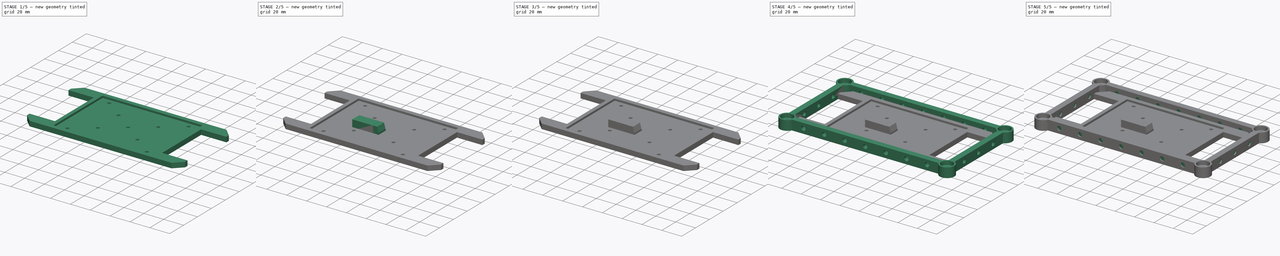
[diagram: build sequence overview — one tinted view per stage of 5, left to right]
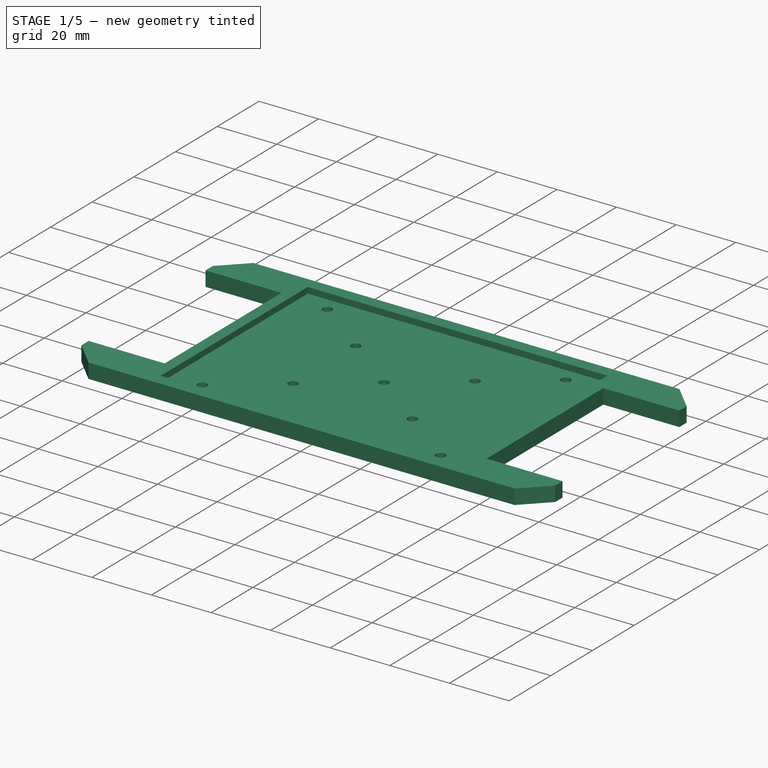
[diagram: stage 1 of 5 — iso view after this stage's code; geometry added in this stage tinted green]
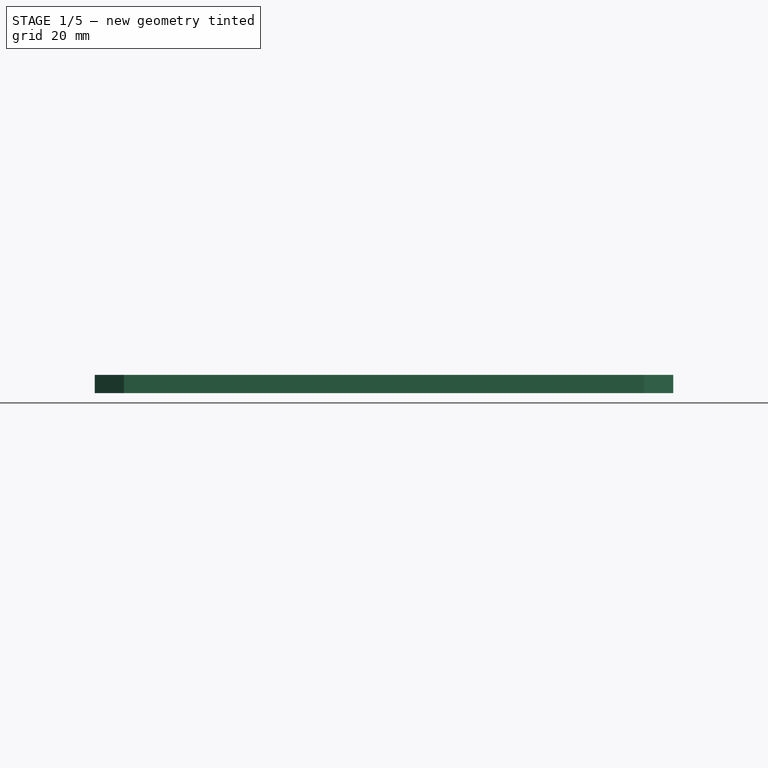
[diagram: stage 1 of 5 — front view after this stage's code; geometry added in this stage tinted green]
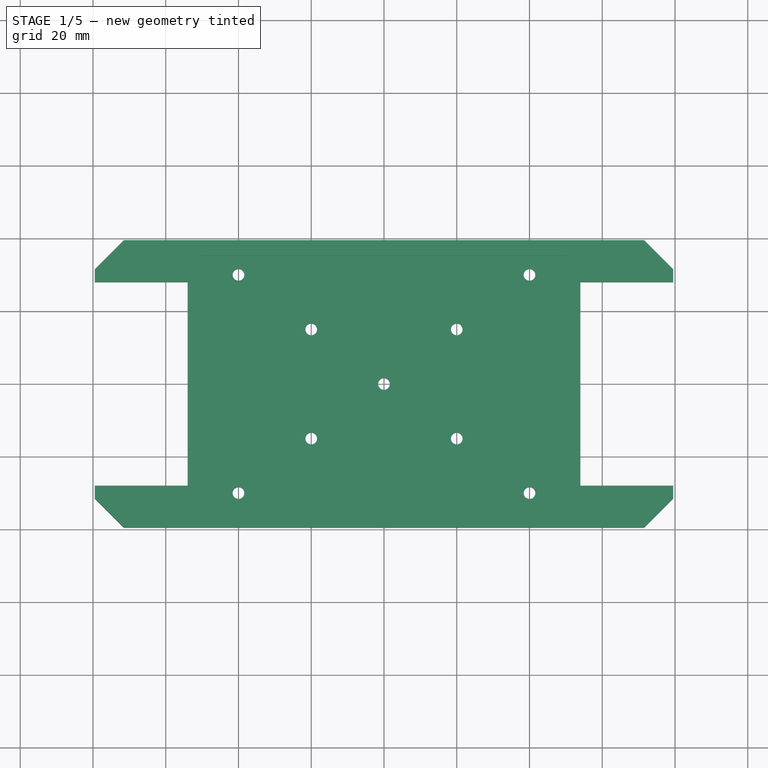
[diagram: stage 1 of 5 — top view after this stage's code; geometry added in this stage tinted green]
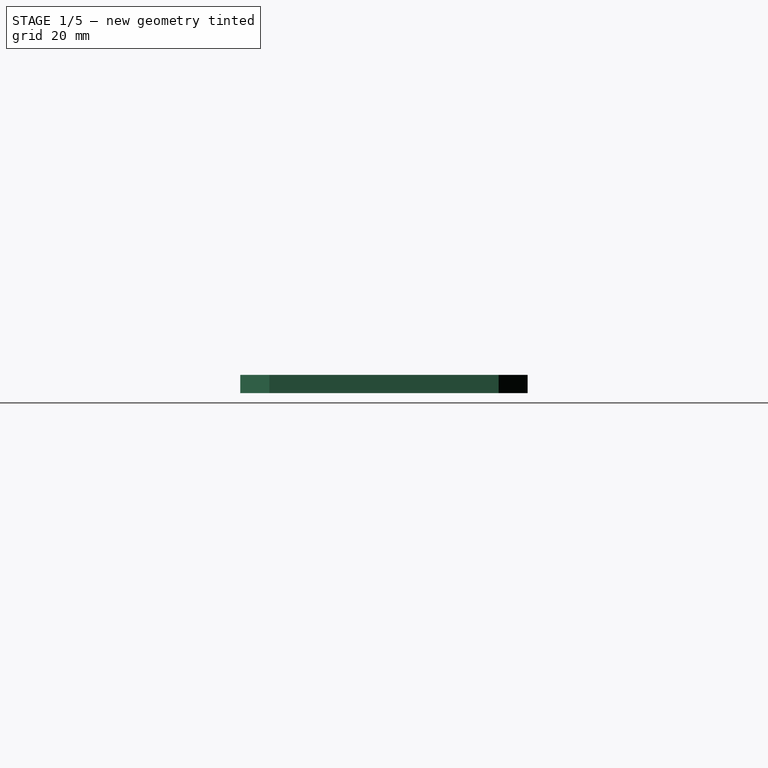
[diagram: stage 1 of 5 — right view after this stage's code; geometry added in this stage tinted green]
FCSTD DOCUMENT  (FreeCAD 0.18R16146 (Git))
Label: holddown-pcb-frame
License: All rights reserved
LicenseURL: http://en.wikipedia.org/wiki/All_rights_reserved
objects: Sketcher::SketchObject×23, PartDesign::Pocket×16, PartDesign::Pad×5, PartDesign::Body×5, Spreadsheet::Sheet×1, Part::Box×1
note: 71 computed .brp shape members not serialized (recipe doc carries the construction recipe); baked Part::Feature solids carry a one-line shape summary decoded from their .brp

FEATURE [PartDesign::Body] Body003  label="holddown-pcb-jaw-0mm"
  Group = -> [Sketch016,Pad003,Sketch017,Pocket011,Sketch018,Pocket012]
  Origin = -> Origin003
  Placement = pos=(5,35,0) rot=(0,0,-1;1.5708rad)
  Tip = -> Pocket012
FEATURE [Sketcher::SketchObject] Sketch019
  MapMode = 5
  Support = -> [XY_Plane004]
  sketch-geometry (8):
    g0: LineSegment StartX=-79.5 StartY=31.5 StartZ=0 EndX=-71.5 EndY=39.5 EndZ=0
    g1: LineSegment StartX=-71.5 StartY=39.5 StartZ=0 EndX=71.5 EndY=39.5 EndZ=0
    g2: LineSegment StartX=71.5 StartY=39.5 StartZ=0 EndX=79.5 EndY=31.5 EndZ=0
    g3: LineSegment StartX=79.5 StartY=31.5 StartZ=0 EndX=79.5 EndY=-31.5 EndZ=0
    g4: LineSegment StartX=79.5 StartY=-31.5 StartZ=0 EndX=71.5 EndY=-39.5 EndZ=0
    g5: LineSegment StartX=71.5 StartY=-39.5 StartZ=0 EndX=-71.5 EndY=-39.5 EndZ=0
    g6: LineSegment StartX=-79.5 StartY=31.5 StartZ=0 EndX=-79.5 EndY=-31.5 EndZ=0
    g7: LineSegment StartX=-79.5 StartY=-31.5 StartZ=0 EndX=-71.5 EndY=-39.5 EndZ=0
  constraints (24):
    c: Coincident(g1,g0)
    c: Horizontal(g1)
    c: Coincident(g2,g1)
    c: Coincident(g3,g2)
    c: Vertical(g3)
    c: Coincident(g4,g3)
    c: Coincident(g5,g4)
    c: Horizontal(g5)
    c: Coincident(g6,g0)
    c: Vertical(g6)
    c: Coincident(g6,g7)
    c: Coincident(g5,g7)
    c: DistanceX(g0,g-1) = 79.5
    c: DistanceX(g-1,g2) = 79.5
    c: DistanceY(g-1,g1) = 39.5
    c: DistanceX(g1,g2) = 8
    c: DistanceY(g2,g1) = 8
    c: DistanceY(g2,g0) = 0
    c: DistanceY(g3,g6) = 0
    c: DistanceX(g0,g5) = 0
    c: DistanceX(g4,g1) = 0
    c: DistanceY(g4,g-1) = 39.5
    c: DistanceY(g5,g6) = 8
    c: DistanceX(g0,g0) = 8
FEATURE [PartDesign::Pad] Pad004
  Length = 5
  Length2 = 100
  Profile = -> Sketch019
  Type = 0
FEATURE [Sketcher::SketchObject] Sketch020
  AttachmentOffset = pos=(0,0,5) rot=(0,0,1;0rad)
  MapMode = 5
  Placement = pos=(0,0,5) rot=(0,0,1;0rad)
  Support = -> [XY_Plane004]
  sketch-geometry (4):
    g0: LineSegment StartX=-50.275 StartY=35.275 StartZ=0 EndX=50.275 EndY=35.275 EndZ=0
    g1: LineSegment StartX=50.275 StartY=35.275 StartZ=0 EndX=50.275 EndY=-35.275 EndZ=0
    g2: LineSegment StartX=50.275 StartY=-35.275 StartZ=0 EndX=-50.275 EndY=-35.275 EndZ=0
    g3: LineSegment StartX=-50.275 StartY=-35.275 StartZ=0 EndX=-50.275 EndY=35.275 EndZ=0
  constraints (12):
    c: Coincident(g0,g1)
    c: Coincident(g1,g2)
    c: Coincident(g2,g3)
    c: Coincident(g3,g0)
    c: Horizontal(g0)
    c: Horizontal(g2)
    c: Vertical(g1)
    c: Vertical(g3)
    c: DistanceX(g0,g-1) = 50.275
    c: DistanceX(g-1,g0) = 50.275
    c: DistanceY(g-1,g0) = 35.275
    c: DistanceY(g2,g-1) = 35.275
FEATURE [PartDesign::Pocket] Pocket013
  BaseFeature = -> Pad004
  Length = 2
  Length2 = 100
  Profile = -> Sketch020
  Type = 0
FEATURE [Sketcher::SketchObject] Sketch021
  MapMode = 5
  Support = -> [XY_Plane004]
  sketch-geometry (8):
    g0: LineSegment StartX=-81 StartY=28 StartZ=0 EndX=-54 EndY=28 EndZ=0
    g1: LineSegment StartX=-54 StartY=28 StartZ=0 EndX=-54 EndY=-28 EndZ=0
    g2: LineSegment StartX=-54 StartY=-28 StartZ=0 EndX=-81 EndY=-28 EndZ=0
    g3: LineSegment StartX=-81 StartY=-28 StartZ=0 EndX=-81 EndY=28 EndZ=0
    g4: LineSegment StartX=54 StartY=28 StartZ=0 EndX=81 EndY=28 EndZ=0
    g5: LineSegment StartX=81 StartY=28 StartZ=0 EndX=81 EndY=-28 EndZ=0
    g6: LineSegment StartX=81 StartY=-28 StartZ=0 EndX=54 EndY=-28 EndZ=0
    g7: LineSegment StartX=54 StartY=-28 StartZ=0 EndX=54 EndY=28 EndZ=0
  constraints (24):
    c: Coincident(g0,g1)
    c: Coincident(g1,g2)
    c: Coincident(g2,g3)
    c: Coincident(g3,g0)
    c: Horizontal(g0)
    c: Horizontal(g2)
    c: Vertical(g1)
    c: Vertical(g3)
    c: DistanceX(g0,g-1) = 54
    c: DistanceY(g-1,g0) = 28
    c: DistanceY(g1,g-1) = 28
    c: DistanceX(g0,g0) = 27
    c: Coincident(g4,g5)
    c: Coincident(g5,g6)
    c: Coincident(g6,g7)
    c: Coincident(g7,g4)
    c: Horizontal(g4)
    c: Horizontal(g6)
    c: Vertical(g5)
    c: Vertical(g7)
    c: Equal(g4,g0)
    c: DistanceY(g0,g4) = 0
    c: DistanceY(g1,g6) = 0
    c: DistanceX(g-1,g4) = 54
FEATURE [PartDesign::Pocket] Pocket014
  BaseFeature = -> Pocket013
  Length = 5
  Length2 = 100
  Profile = -> Sketch021
  Reversed = true
  Type = 1
FEATURE [Sketcher::SketchObject] Sketch022
  MapMode = 5
  Support = -> [XY_Plane004]
  sketch-geometry (14):
    g0: LineSegment [constr] StartX=-50 StartY=30 StartZ=0 EndX=50 EndY=30 EndZ=0
    g1: LineSegment [constr] StartX=-50 StartY=0 StartZ=0 EndX=50 EndY=0 EndZ=0
    g2: LineSegment [constr] StartX=-50 StartY=-30 StartZ=0 EndX=50 EndY=-30 EndZ=0
    g3: LineSegment [constr] StartX=-50 StartY=-15 StartZ=0 EndX=50 EndY=-15 EndZ=0
    g4: LineSegment [constr] StartX=-50 StartY=15 StartZ=0 EndX=50 EndY=15 EndZ=0
    g5: Circle CenterX=0 CenterY=0 CenterZ=0 NormalX=0 NormalY=0 NormalZ=1 AngleXU=0 Radius=1.6
    g6: Circle CenterX=-20 CenterY=15 CenterZ=0 NormalX=0 NormalY=0 NormalZ=1 AngleXU=0 Radius=1.6
    g7: Circle CenterX=20 CenterY=15 CenterZ=0 NormalX=0 NormalY=0 NormalZ=1 AngleXU=0 Radius=1.6
    g8: Circle CenterX=-20 CenterY=-15 CenterZ=0 NormalX=0 NormalY=0 NormalZ=1 AngleXU=0 Radius=1.6
    g9: Circle CenterX=20 CenterY=-15 CenterZ=0 NormalX=0 NormalY=0 NormalZ=1 AngleXU=0 Radius=1.6
    g10: Circle CenterX=-40 CenterY=30 CenterZ=0 NormalX=0 NormalY=0 NormalZ=1 AngleXU=0 Radius=1.6
    g11: Circle CenterX=40 CenterY=30 CenterZ=0 NormalX=0 NormalY=0 NormalZ=1 AngleXU=0 Radius=1.6
    g12: Circle CenterX=-40 CenterY=-30 CenterZ=0 NormalX=0 NormalY=0 NormalZ=1 AngleXU=0 Radius=1.6
    g13: Circle CenterX=40 CenterY=-30 CenterZ=0 NormalX=0 NormalY=0 NormalZ=1 AngleXU=0 Radius=1.6
  constraints (47):
    c: Horizontal(g0)
    c: PointOnObject(g1,g-1)
    c: PointOnObject(g1,g-1)
    c: Horizontal(g2)
    c: Horizontal(g3)
    c: Horizontal(g4)
    c: DistanceX(g1,g-1) = 50
    c: DistanceX(g-1,g1) = 50
    c: DistanceX(g0,g4) = 0
    c: DistanceX(g1,g4) = 0
    c: DistanceX(g1,g3) = 0
    c: DistanceX(g3,g2) = 0
    c: DistanceX(g4,g0) = 0
    c: DistanceX(g4,g1) = 0
    c: DistanceX(g3,g1) = 0
    c: DistanceX(g2,g3) = 0
    c: DistanceY(g-1,g0) = 30
    c: DistanceY(g-1,g4) = 15
    c: DistanceY(g3,g-1) = 15
    c: DistanceY(g2,g-1) = 30
    c: Diameter(g5) = 3.2
    c: Coincident(g-1,g5)
    c: PointOnObject(g7,g4)
    c: PointOnObject(g8,g3)
    c: PointOnObject(g9,g3)
    c: Equal(g6,g5)
    c: Equal(g7,g5)
    c: Equal(g8,g5)
    c: Equal(g9,g5)
    c: DistanceX(g6,g5) = 20
    c: DistanceX(g6,g8) = 0
    c: DistanceX(g5,g7) = 20
    c: DistanceX(g7,g9) = 0
    c: PointOnObject(g6,g4)
    c: PointOnObject(g10,g0)
    c: PointOnObject(g12,g2)
    c: PointOnObject(g13,g2)
    c: DistanceX(g13,g11) = 0
    c: DistanceX(g12,g10) = 0
    c: DistanceX(g10,g6) = 20
    c: DistanceX(g7,g11) = 20
    c: PointOnObject(g11,g0)
    c: Equal(g11,g3)
    c: Equal(g13,g9)
    c: Equal(g10,g6)
    c: Equal(g12,g8)
    c: Equal(g7,g11)
FEATURE [PartDesign::Pocket] Pocket015
  BaseFeature = -> Pocket014
  Length = 5
  Length2 = 100
  Profile = -> Sketch022
  Reversed = true
  Type = 1
FEATURE [PartDesign::Body] Body004  label="holddown-pcb-jig"
  Group = -> [Sketch019,Pad004,Sketch020,Pocket013,Sketch021,Pocket014,Sketch022,Pocket015]
  Origin = -> Origin004
  Tip = -> Pocket015
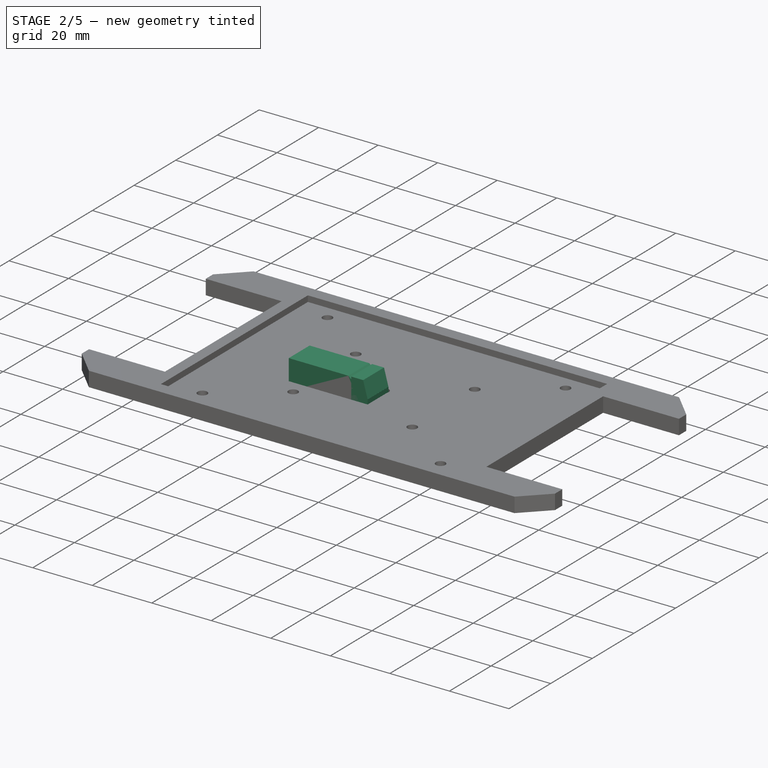
[diagram: stage 2 of 5 — iso view after this stage's code; geometry added in this stage tinted green]
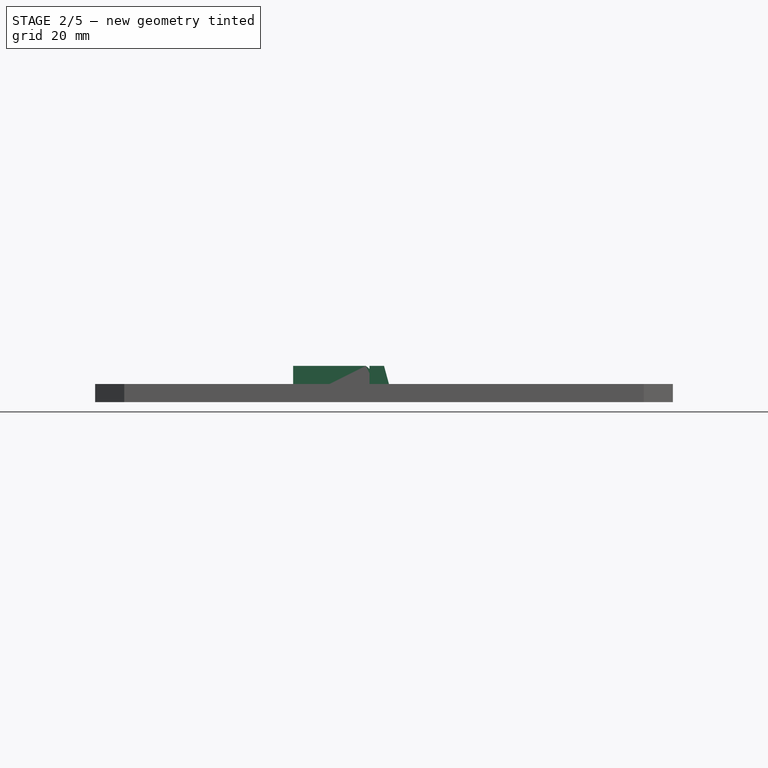
[diagram: stage 2 of 5 — front view after this stage's code; geometry added in this stage tinted green]
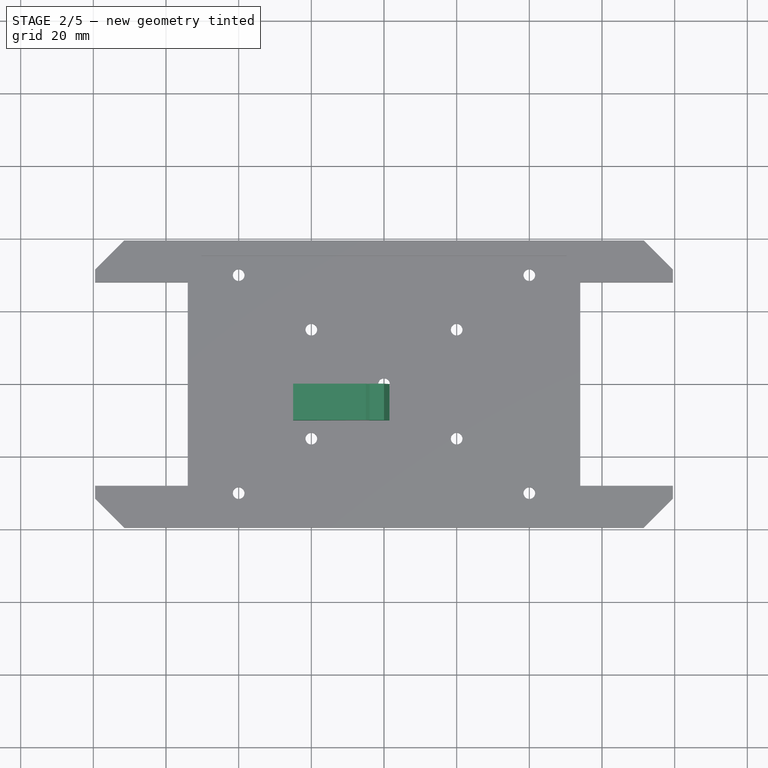
[diagram: stage 2 of 5 — top view after this stage's code; geometry added in this stage tinted green]
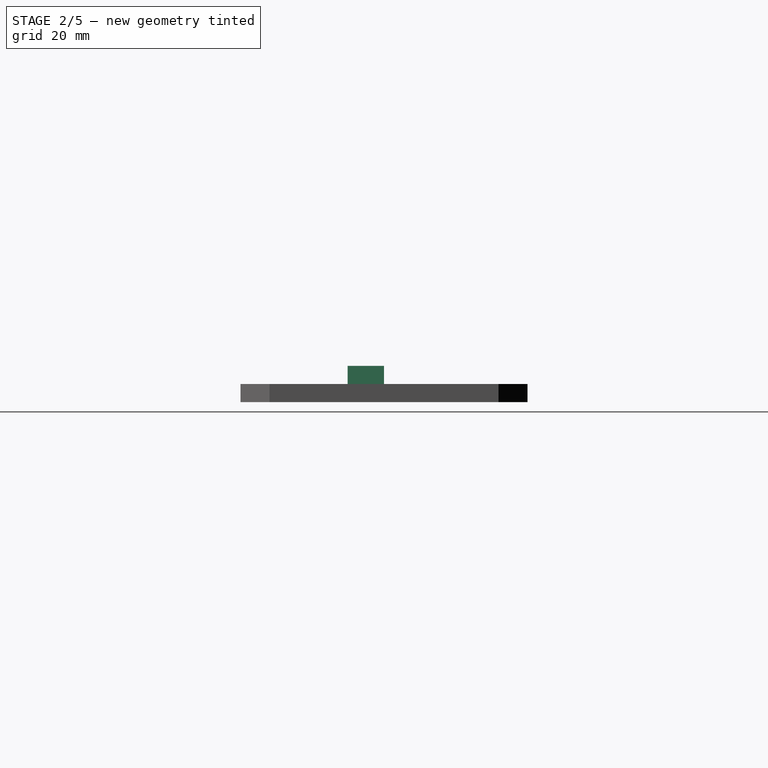
[diagram: stage 2 of 5 — right view after this stage's code; geometry added in this stage tinted green]
FEATURE [PartDesign::Body] Body001  label="holddown-pcb-jaw-10mm"
  Group = -> [Sketch010,Pad001,Sketch011,Pocket007,Sketch012,Pocket008]
  Origin = -> Origin001
  Placement = pos=(-50,5,0) rot=(0,0,1;0rad)
  Tip = -> Pocket008
FEATURE [Sketcher::SketchObject] Sketch013
  AttachmentOffset = pos=(0,0,-25.1) rot=(0,0,1;0rad)
  MapMode = 5
  Placement = pos=(-25.1,5.6e-15,-5.6e-15) rot=(0.57735,0.57735,0.57735;2.0944rad)
  Support = -> [YZ_Plane002]
  expr: Constraints[2] = Spreadsheet.m4_bolt_diameter
  sketch-geometry (1):
    g0: Circle CenterX=-5 CenterY=5 CenterZ=0 NormalX=0 NormalY=0 NormalZ=1 AngleXU=0 Radius=2.2
  constraints (3):
    c: DistanceX(g0,g-1) = 5
    c: DistanceY(g-1,g0) = 5
    c: Diameter(g0) = 4.4
FEATURE [Sketcher::SketchObject] Sketch014
  MapMode = 5
  Placement = pos=(0,0,0) rot=(1,0,0;1.5708rad)
  Support = -> [XZ_Plane002]
  sketch-geometry (7):
    g0: LineSegment StartX=1.5 StartY=4.55 StartZ=0 EndX=1.5 EndY=1.55 EndZ=0
    g1: LineSegment StartX=1.5 StartY=1.55 StartZ=0 EndX=0 EndY=1.55 EndZ=0
    g2: LineSegment StartX=0 StartY=1.55 StartZ=0 EndX=0 EndY=0 EndZ=0
    g3: LineSegment StartX=-24.9951 StartY=10 StartZ=0 EndX=-24.9951 EndY=0 EndZ=0
    g4: LineSegment StartX=-24.9951 StartY=0 StartZ=0 EndX=0 EndY=0 EndZ=0
    g5: LineSegment StartX=-24.9951 StartY=10 StartZ=0 EndX=-4.99506 EndY=10 EndZ=0
    g6: LineSegment StartX=-4.99506 StartY=10 StartZ=0 EndX=1.5 EndY=4.55 EndZ=0
  constraints (20):
    c: Vertical(g0)
    c: Coincident(g1,g0)
    c: Horizontal(g1)
    c: Coincident(g2,g-1)
    c: PointOnObject(g3,g-1)
    c: Vertical(g3)
    c: Coincident(g4,g3)
    c: Coincident(g4,g2)
    c: Vertical(g2)
    c: Coincident(g1,g2)
    c: DistanceY(g2,g2) = 1.55
    c: DistanceY(g0,g0) = 3
    c: DistanceY(g3,g3) = 10
    c: Coincident(g5,g3)
    c: Horizontal(g5)
    c: Coincident(g6,g5)
    c: Coincident(g6,g0)
    c: Angle(g6,g0) = 2.26893
    c: DistanceX(g1,g1) = 1.5
    c: DistanceX(g5,g5) = 20
FEATURE [PartDesign::Pad] Pad002
  Length = 10
  Length2 = 100
  Placement = pos=(0,0,0) rot=(1,0,0;1.5708rad)
  Profile = -> Sketch014
  Type = 0
FEATURE [Sketcher::SketchObject] Sketch015
  AttachmentOffset = pos=(0,0,-24) rot=(0,0,1;0rad)
  MapMode = 5
  Placement = pos=(-24,5.3e-15,-5.3e-15) rot=(0.57735,0.57735,0.57735;2.0944rad)
  Support = -> [YZ_Plane002]
  expr: Constraints[4] = Spreadsheet.m4_nut_diameter
  sketch-geometry (8):
    g0: LineSegment StartX=-1.6225 StartY=3.05 StartZ=0 EndX=-1.6225 EndY=6.95 EndZ=0
    g1: LineSegment StartX=-8.3775 StartY=6.95 StartZ=0 EndX=-8.3775 EndY=3.05 EndZ=0
    g2: Circle [constr] CenterX=-5 CenterY=5 CenterZ=0 NormalX=0 NormalY=0 NormalZ=1 AngleXU=0 Radius=3.9
    g3: LineSegment StartX=-1.6225 StartY=6.95 StartZ=0 EndX=-5 EndY=8.9 EndZ=0
    g4: LineSegment StartX=-8.3775 StartY=6.95 StartZ=0 EndX=-5 EndY=8.9 EndZ=0
    g5: LineSegment StartX=-8.3775 StartY=3.05 StartZ=0 EndX=-8.3775 EndY=-1 EndZ=0
    g6: LineSegment StartX=-1.6225 StartY=3.05 StartZ=0 EndX=-1.6225 EndY=-1 EndZ=0
    g7: LineSegment StartX=-8.3775 StartY=-1 StartZ=0 EndX=-1.6225 EndY=-1 EndZ=0
  constraints (24):
    c: PointOnObject(g0,g2)
    c: PointOnObject(g0,g2)
    c: PointOnObject(g1,g2)
    c: PointOnObject(g1,g2)
    c: Diameter(g2) = 7.8
    c: Vertical(g0)
    c: DistanceY(g-1,g2) = 5
    c: DistanceX(g2,g-1) = 5
    c: Coincident(g3,g0)
    c: Vertical(g1)
    c: Coincident(g4,g1)
    c: Coincident(g3,g4)
    c: Equal(g3,g4)
    c: Equal(g4,g1)
    c: Vertical(g5)
    c: Vertical(g6)
    c: Horizontal(g7)
    c: Coincident(g6,g7)
    c: DistanceY(g6,g-1) = 1
    c: Coincident(g5,g7)
    c: Equal(g3,g0)
    c: Coincident(g0,g6)
    c: Coincident(g1,g5)
    c: PointOnObject(g3,g2)
FEATURE [PartDesign::Pocket] Pocket010
  BaseFeature = -> Pad002
  Length = 3.6
  Length2 = 100
  Placement = pos=(0,0,0) rot=(1,0,0;1.5708rad)
  Profile = -> Sketch015
  Reversed = true
  Type = 0
FEATURE [PartDesign::Body] Body002  label="holddown-pcb-jaw-20mm"
  Group = -> [Sketch014,Pad002,Sketch015,Pocket010,Sketch013,Pocket009]
  Origin = -> Origin002
  Placement = pos=(-50,5,0) rot=(0,0,1;0rad)
  Tip = -> Pocket009
FEATURE [Sketcher::SketchObject] Sketch016
  MapMode = 5
  Placement = pos=(0,0,0) rot=(1,0,0;1.5708rad)
  Support = -> [XZ_Plane003]
  sketch-geometry (7):
    g0: LineSegment StartX=1.5 StartY=4.5 StartZ=0 EndX=1.5 EndY=1.5 EndZ=0
    g1: LineSegment StartX=1.5 StartY=1.5 StartZ=0 EndX=0 EndY=1.5 EndZ=0
    g2: LineSegment StartX=0 StartY=1.5 StartZ=0 EndX=0 EndY=0 EndZ=0
    g3: LineSegment StartX=-4 StartY=10 StartZ=0 EndX=-4 EndY=0 EndZ=0
    g4: LineSegment StartX=0 StartY=0 StartZ=0 EndX=-4 EndY=0 EndZ=0
    g5: LineSegment StartX=-4 StartY=10 StartZ=0 EndX=0 EndY=10 EndZ=0
    g6: LineSegment StartX=0 StartY=10 StartZ=0 EndX=1.5 EndY=4.5 EndZ=0
  constraints (20):
    c: Vertical(g0)
    c: Coincident(g1,g0)
    c: Horizontal(g1)
    c: Coincident(g2,g-1)
    c: Vertical(g3)
    c: Vertical(g2)
    c: Coincident(g1,g2)
    c: DistanceY(g2,g2) = 1.5
    c: DistanceY(g0,g0) = 3
    c: DistanceX(g1,g1) = 1.5
    c: PointOnObject(g3,g-1)
    c: Coincident(g4,g2)
    c: Coincident(g3,g4)
    c: DistanceX(g4,g4) = 4
    c: DistanceY(g3,g3) = 10
    c: Coincident(g5,g3)
    c: Horizontal(g5)
    c: PointOnObject(g5,g-2)
    c: Coincident(g6,g0)
    c: Coincident(g5,g6)
FEATURE [PartDesign::Pad] Pad003
  Length = 10
  Length2 = 100
  Placement = pos=(0,0,0) rot=(1,0,0;1.5708rad)
  Profile = -> Sketch016
  Type = 0
FEATURE [Sketcher::SketchObject] Sketch017
  AttachmentOffset = pos=(0,0,-4) rot=(0,0,1;0rad)
  MapMode = 5
  Placement = pos=(-4,9e-16,-9e-16) rot=(0.57735,0.57735,0.57735;2.0944rad)
  Support = -> [YZ_Plane003]
  expr: Constraints[17] = Spreadsheet.m4_nut_diameter
  sketch-geometry (7):
    g0: LineSegment StartX=-8.3775 StartY=3.05 StartZ=0 EndX=-5 EndY=1.1 EndZ=0
    g1: LineSegment StartX=-5 StartY=1.1 StartZ=0 EndX=-1.6225 EndY=3.05 EndZ=0
    g2: LineSegment StartX=-1.6225 StartY=3.05 StartZ=0 EndX=-1.6225 EndY=6.95 EndZ=0
    g3: LineSegment StartX=-1.6225 StartY=6.95 StartZ=0 EndX=-5 EndY=8.9 EndZ=0
    g4: LineSegment StartX=-5 StartY=8.9 StartZ=0 EndX=-8.3775 EndY=6.95 EndZ=0
    g5: LineSegment StartX=-8.3775 StartY=6.95 StartZ=0 EndX=-8.3775 EndY=3.05 EndZ=0
    g6: Circle [constr] CenterX=-5 CenterY=5 CenterZ=0 NormalX=0 NormalY=0 NormalZ=1 AngleXU=0 Radius=3.9
  constraints (17):
    c: Coincident(g0,g1)
    c: Coincident(g1,g2)
    c: Coincident(g2,g3)
    c: Coincident(g3,g4)
    c: Coincident(g4,g5)
    c: Coincident(g5,g0)
    c: Equal(g0, g1-g5) x5
    c: PointOnObject(g0,g6)
    c: PointOnObject(g1,g6)
    c: PointOnObject(g2,g6)
    c: PointOnObject(g3,g6)
    c: PointOnObject(g4,g6)
    c: PointOnObject(g5,g6)
    c: Diameter(g6) = 7.8
    c: Vertical(g2)
    c: DistanceY(g-1,g6) = 5
    c: DistanceX(g6,g-1) = 5
FEATURE [PartDesign::Pocket] Pocket011
  BaseFeature = -> Pad003
  Length = 3.6
  Length2 = 100
  Placement = pos=(0,0,0) rot=(1,0,0;1.5708rad)
  Profile = -> Sketch017
  Reversed = true
  Type = 0
FEATURE [Sketcher::SketchObject] Sketch018
  AttachmentOffset = pos=(0,0,-4) rot=(0,0,1;0rad)
  MapMode = 5
  Placement = pos=(-4,9e-16,-9e-16) rot=(0.57735,0.57735,0.57735;2.0944rad)
  Support = -> [YZ_Plane003]
  expr: Constraints[2] = Spreadsheet.m4_bolt_diameter
  sketch-geometry (1):
    g0: Circle CenterX=-5 CenterY=5 CenterZ=0 NormalX=0 NormalY=0 NormalZ=1 AngleXU=0 Radius=2.2
  constraints (3):
    c: DistanceX(g0,g-1) = 5
    c: DistanceY(g-1,g0) = 5
    c: Diameter(g0) = 4.4
FEATURE [PartDesign::Pocket] Pocket012
  BaseFeature = -> Pocket011
  Length = 4
  Length2 = 100
  Placement = pos=(0,0,0) rot=(1,0,0;1.5708rad)
  Profile = -> Sketch018
  Reversed = true
  Type = 0
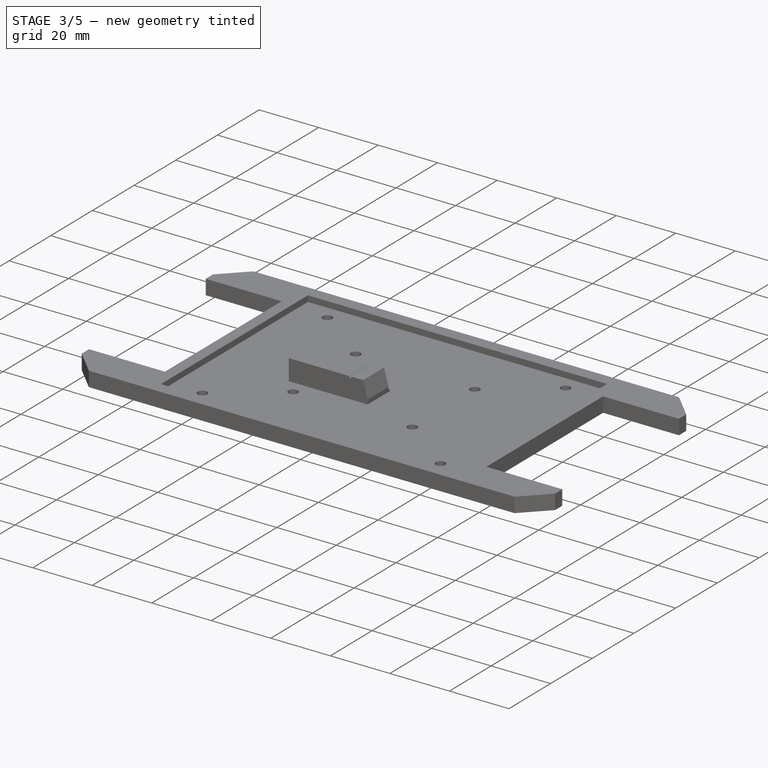
[diagram: stage 3 of 5 — iso view after this stage's code; geometry added in this stage tinted green]
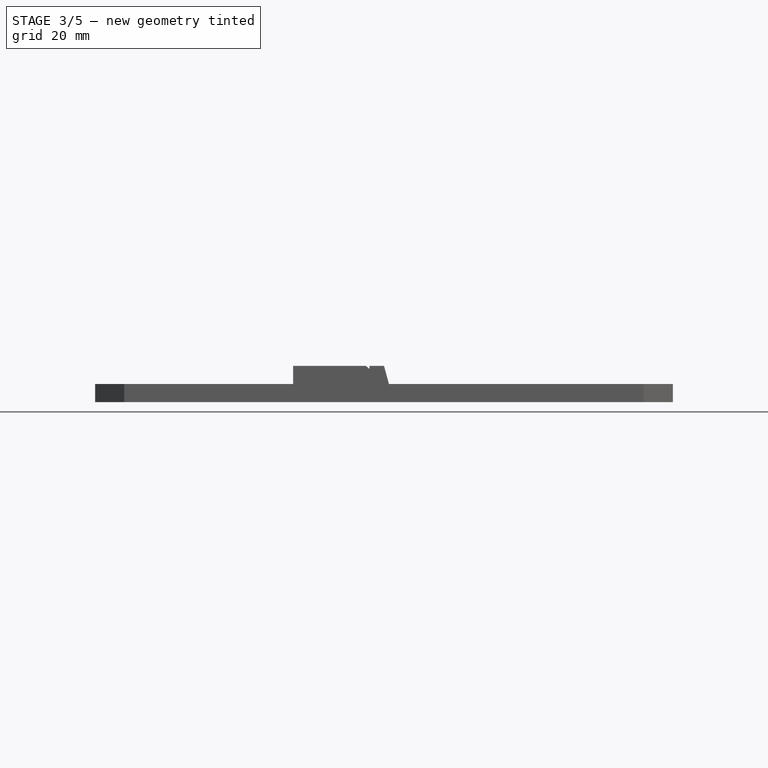
[diagram: stage 3 of 5 — front view after this stage's code; geometry added in this stage tinted green]
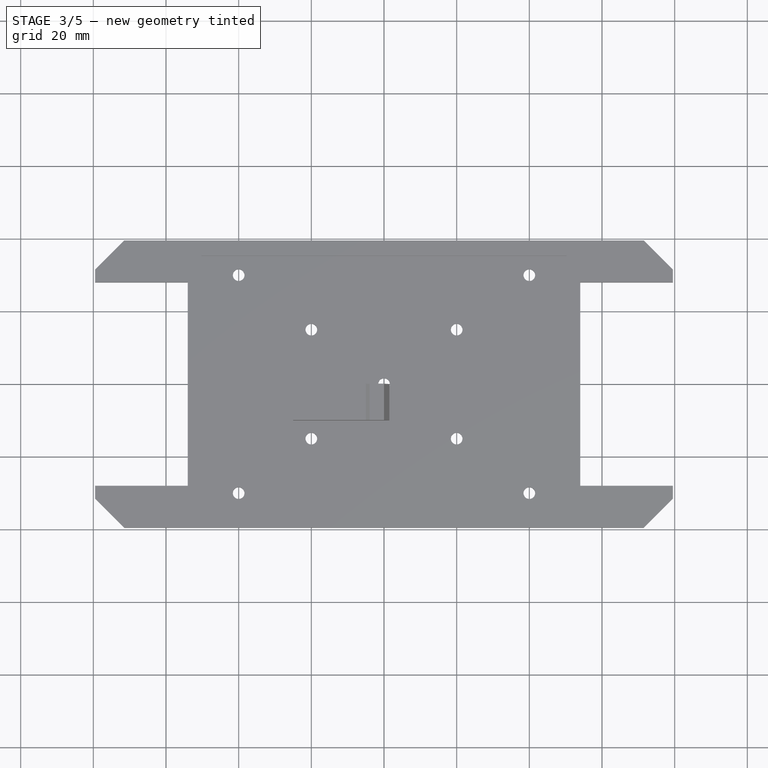
[diagram: stage 3 of 5 — top view after this stage's code; geometry added in this stage tinted green]
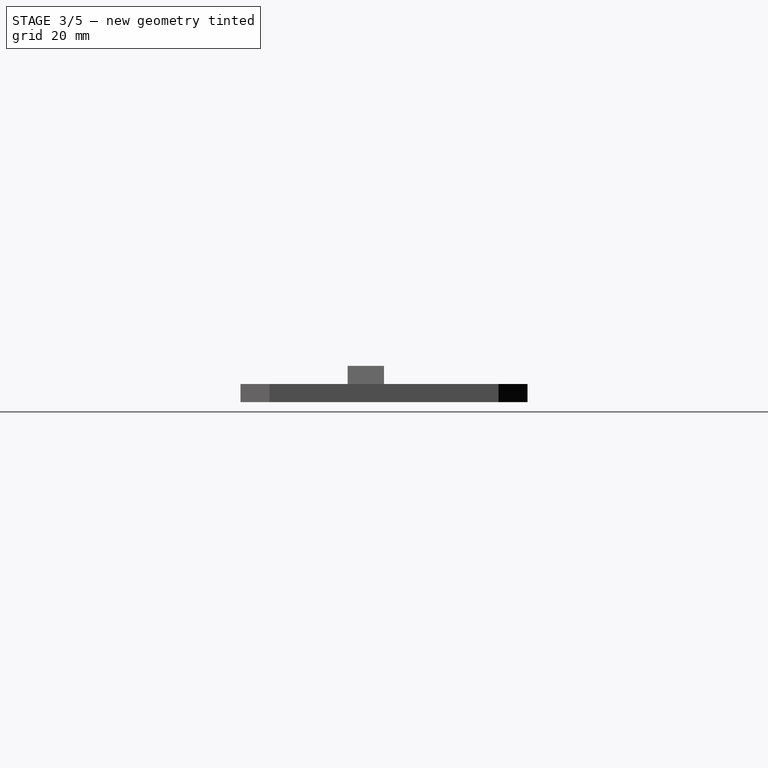
[diagram: stage 3 of 5 — right view after this stage's code; geometry added in this stage tinted green]
FEATURE [Sketcher::SketchObject] Sketch010
  MapMode = 5
  Placement = pos=(0,0,0) rot=(1,0,0;1.5708rad)
  Support = -> [XZ_Plane001]
  sketch-geometry (7):
    g0: LineSegment StartX=1.5 StartY=4.5 StartZ=0 EndX=1.5 EndY=1.5 EndZ=0
    g1: LineSegment StartX=1.5 StartY=1.5 StartZ=0 EndX=0 EndY=1.5 EndZ=0
    g2: LineSegment StartX=0 StartY=1.5 StartZ=0 EndX=0 EndY=0 EndZ=0
    g3: LineSegment StartX=-15.0546 StartY=10 StartZ=0 EndX=-15.0546 EndY=0 EndZ=0
    g4: LineSegment StartX=-15.0546 StartY=0 StartZ=0 EndX=0 EndY=0 EndZ=0
    g5: LineSegment StartX=-15.0546 StartY=10 StartZ=0 EndX=-5.05464 EndY=10 EndZ=0
    g6: LineSegment StartX=-5.05464 StartY=10 StartZ=0 EndX=1.5 EndY=4.5 EndZ=0
  constraints (20):
    c: Vertical(g0)
    c: Coincident(g1,g0)
    c: Horizontal(g1)
    c: Coincident(g2,g-1)
    c: PointOnObject(g3,g-1)
    c: Vertical(g3)
    c: Coincident(g4,g3)
    c: Coincident(g4,g2)
    c: Vertical(g2)
    c: Coincident(g1,g2)
    c: DistanceY(g2,g2) = 1.5
    c: DistanceY(g0,g0) = 3
    c: DistanceY(g3,g3) = 10
    c: Coincident(g5,g3)
    c: Horizontal(g5)
    c: Coincident(g6,g5)
    c: Coincident(g6,g0)
    c: Angle(g6,g0) = 2.26893
    c: DistanceX(g1,g1) = 1.5
    c: DistanceX(g5,g5) = 10
FEATURE [PartDesign::Pad] Pad001
  Length = 10
  Length2 = 100
  Placement = pos=(0,0,0) rot=(1,0,0;1.5708rad)
  Profile = -> Sketch010
  Type = 0
FEATURE [Sketcher::SketchObject] Sketch011
  AttachmentOffset = pos=(0,0,-15.1) rot=(0,0,1;0rad)
  MapMode = 5
  Placement = pos=(-15.1,3.4e-15,-3.4e-15) rot=(0.57735,0.57735,0.57735;2.0944rad)
  Support = -> [YZ_Plane001]
  expr: Constraints[17] = Spreadsheet.m4_nut_diameter
  sketch-geometry (7):
    g0: LineSegment StartX=-8.3775 StartY=3.05 StartZ=0 EndX=-5 EndY=1.1 EndZ=0
    g1: LineSegment StartX=-5 StartY=1.1 StartZ=0 EndX=-1.6225 EndY=3.05 EndZ=0
    g2: LineSegment StartX=-1.6225 StartY=3.05 StartZ=0 EndX=-1.6225 EndY=6.95 EndZ=0
    g3: LineSegment StartX=-1.6225 StartY=6.95 StartZ=0 EndX=-5 EndY=8.9 EndZ=0
    g4: LineSegment StartX=-5 StartY=8.9 StartZ=0 EndX=-8.3775 EndY=6.95 EndZ=0
    g5: LineSegment StartX=-8.3775 StartY=6.95 StartZ=0 EndX=-8.3775 EndY=3.05 EndZ=0
    g6: Circle [constr] CenterX=-5 CenterY=5 CenterZ=0 NormalX=0 NormalY=0 NormalZ=1 AngleXU=0 Radius=3.9
  constraints (17):
    c: Coincident(g0,g1)
    c: Coincident(g1,g2)
    c: Coincident(g2,g3)
    c: Coincident(g3,g4)
    c: Coincident(g4,g5)
    c: Coincident(g5,g0)
    c: Equal(g0, g1-g5) x5
    c: PointOnObject(g0,g6)
    c: PointOnObject(g1,g6)
    c: PointOnObject(g2,g6)
    c: PointOnObject(g3,g6)
    c: PointOnObject(g4,g6)
    c: PointOnObject(g5,g6)
    c: Diameter(g6) = 7.8
    c: Vertical(g2)
    c: DistanceY(g-1,g6) = 5
    c: DistanceX(g6,g-1) = 5
FEATURE [PartDesign::Pocket] Pocket007
  BaseFeature = -> Pad001
  Length = 3.6
  Length2 = 100
  Placement = pos=(0,0,0) rot=(1,0,0;1.5708rad)
  Profile = -> Sketch011
  Reversed = true
  Type = 0
FEATURE [Sketcher::SketchObject] Sketch012
  AttachmentOffset = pos=(0,0,-15) rot=(0,0,1;0rad)
  MapMode = 5
  Placement = pos=(-15,3.3e-15,-3.3e-15) rot=(0.57735,0.57735,0.57735;2.0944rad)
  Support = -> [YZ_Plane001]
  expr: Constraints[2] = Spreadsheet.m4_bolt_diameter
  sketch-geometry (1):
    g0: Circle CenterX=-5 CenterY=5 CenterZ=0 NormalX=0 NormalY=0 NormalZ=1 AngleXU=0 Radius=2.2
  constraints (3):
    c: DistanceX(g0,g-1) = 5
    c: DistanceY(g-1,g0) = 5
    c: Diameter(g0) = 4.4
FEATURE [PartDesign::Pocket] Pocket008
  BaseFeature = -> Pocket007
  Length = 5
  Length2 = 100
  Placement = pos=(0,0,0) rot=(1,0,0;1.5708rad)
  Profile = -> Sketch012
  Reversed = true
  Type = 0
FEATURE [PartDesign::Pocket] Pocket009
  BaseFeature = -> Pocket010
  Length = 5
  Length2 = 100
  Placement = pos=(0,0,0) rot=(1,0,0;1.5708rad)
  Profile = -> Sketch013
  Reversed = true
  Type = 0
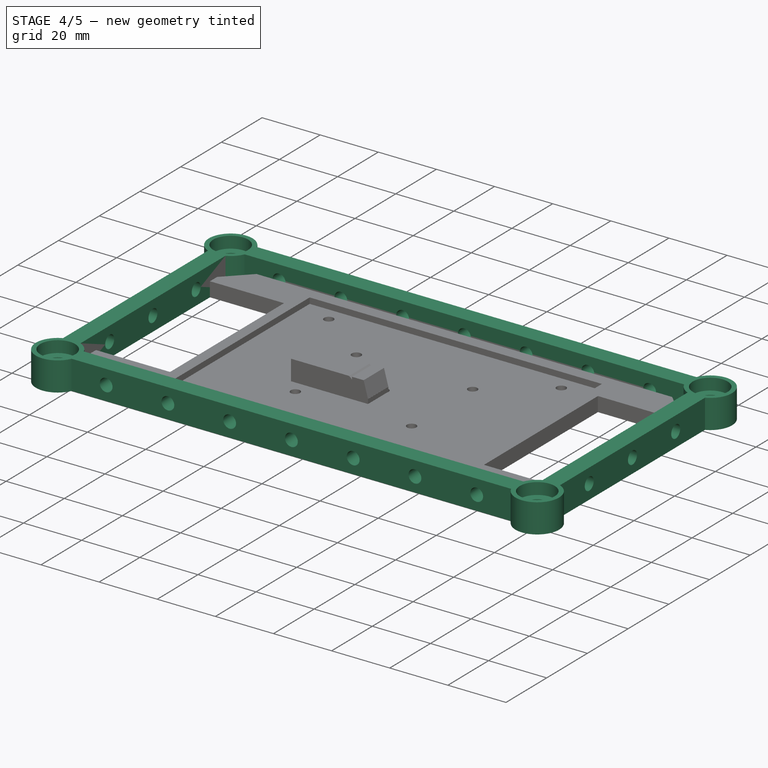
[diagram: stage 4 of 5 — iso view after this stage's code; geometry added in this stage tinted green]
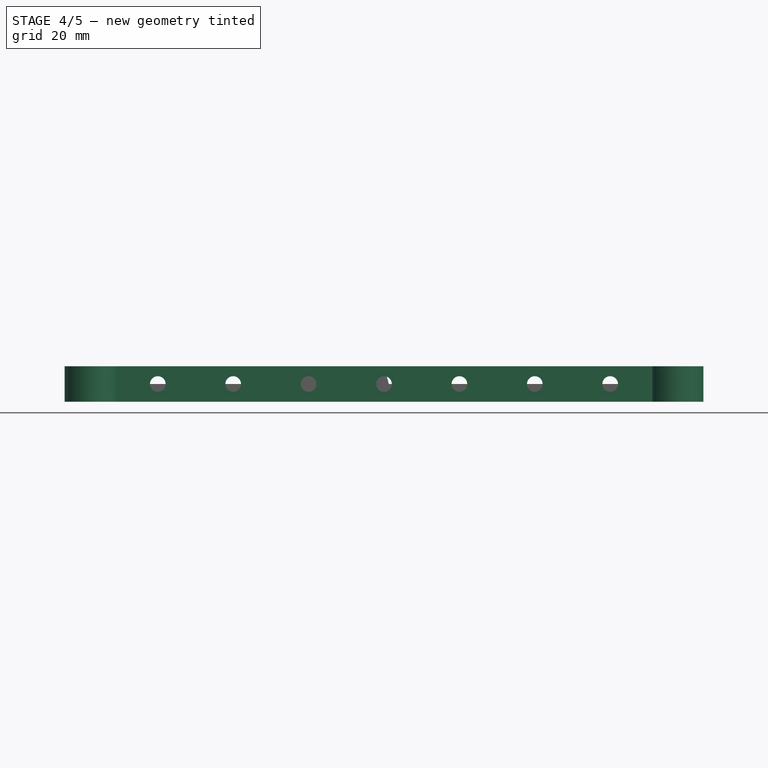
[diagram: stage 4 of 5 — front view after this stage's code; geometry added in this stage tinted green]
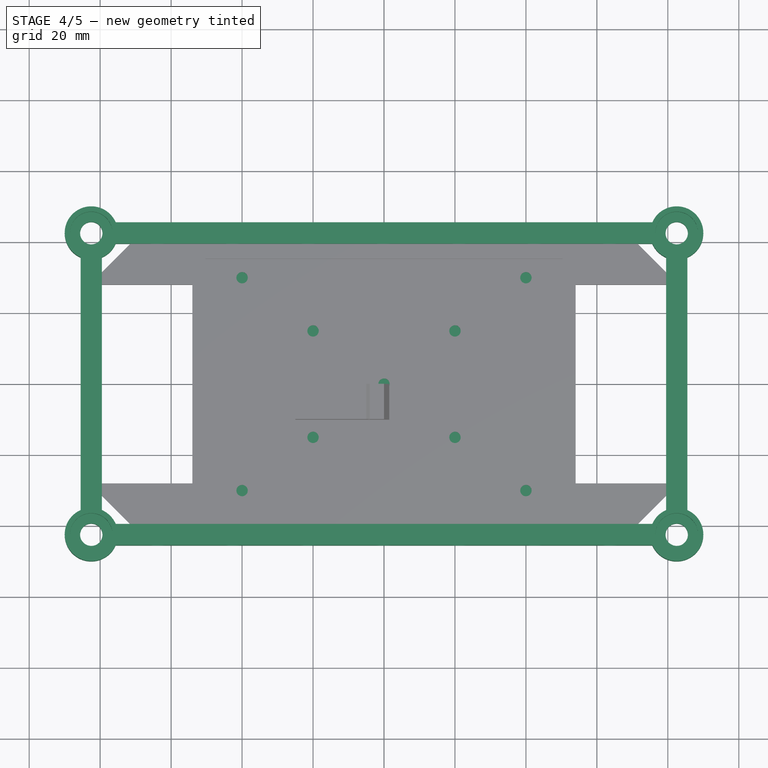
[diagram: stage 4 of 5 — top view after this stage's code; geometry added in this stage tinted green]
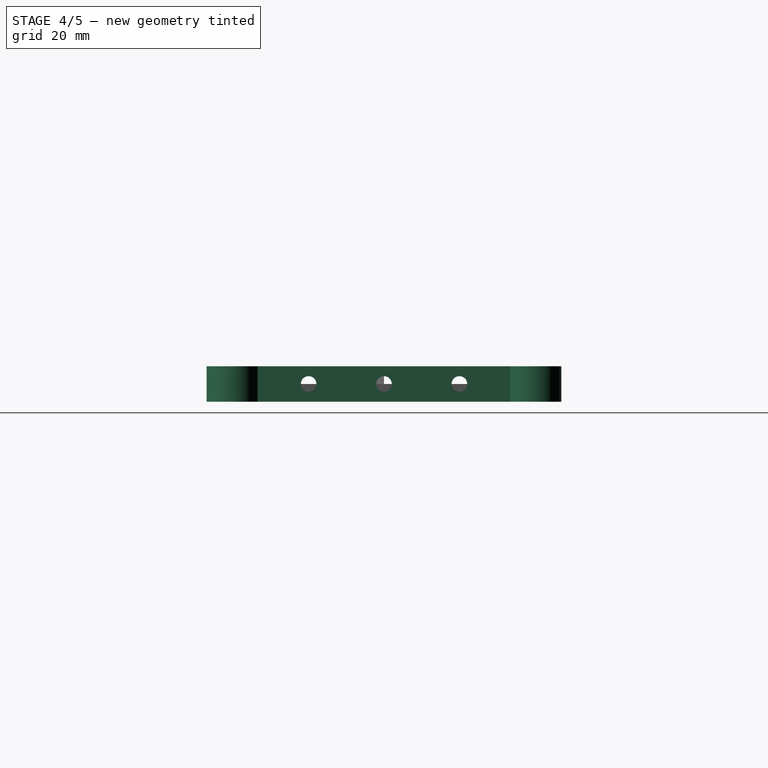
[diagram: stage 4 of 5 — right view after this stage's code; geometry added in this stage tinted green]
FEATURE [Sketcher::SketchObject] Sketch  label="hole positions"
  MapMode = 5
  Support = -> [XY_Plane]
  sketch-geometry (4):
    g0: Circle CenterX=-82.5 CenterY=42.5 CenterZ=0 NormalX=0 NormalY=0 NormalZ=1 AngleXU=0 Radius=3.15
    g1: Circle CenterX=82.5 CenterY=42.5 CenterZ=0 NormalX=0 NormalY=0 NormalZ=1 AngleXU=0 Radius=3.15
    g2: Circle CenterX=-82.5 CenterY=-42.5 CenterZ=0 NormalX=0 NormalY=0 NormalZ=1 AngleXU=0 Radius=3.15
    g3: Circle CenterX=82.5 CenterY=-42.5 CenterZ=0 NormalX=0 NormalY=0 NormalZ=1 AngleXU=0 Radius=3.15
  constraints (12):
    c: Diameter(g0) = 6.3
    c: Equal(g1,g0)
    c: Equal(g3,g0)
    c: Equal(g2,g0)
    c: DistanceY(g0,g1) = 0
    c: DistanceX(g2,g0) = 0
    c: DistanceX(g1,g3) = 0
    c: DistanceY(g2,g3) = 0
    c: DistanceX(g0,g1) = 165
    c: DistanceY(g3,g1) = 85
    c: DistanceY(g-1,g1) = 42.5
    c: DistanceX(g-1,g1) = 82.5
FEATURE [Sketcher::SketchObject] Sketch001
  MapMode = 5
  Support = -> [XY_Plane]
  expr: Constraints[49] = Spreadsheet.frame_width
  expr: Constraints[0] = Sketch.Constraints[0]
  expr: Constraints[51] = Spreadsheet.frame_width
  expr: Constraints[16] = Spreadsheet.mount_corner_diameter
  expr: Constraints[8] = Sketch.Constraints[8]
  expr: Constraints[11] = Sketch.Constraints[11]
  expr: Constraints[53] = Spreadsheet.frame_width
  expr: Constraints[54] = Spreadsheet.frame_width
  expr: Constraints[9] = Sketch.Constraints[9]
  expr: Constraints[7] = Sketch.Constraints[7]
  expr: Constraints[6] = Sketch.Constraints[6]
  expr: Constraints[10] = Sketch.Constraints[10]
  expr: Constraints[5] = Sketch.Constraints[5]
  expr: Constraints[4] = Sketch.Constraints[4]
  sketch-geometry (20):
    g0: Circle CenterX=-82.5 CenterY=42.5 CenterZ=0 NormalX=0 NormalY=0 NormalZ=1 AngleXU=0 Radius=3.15
    g1: Circle CenterX=82.5 CenterY=42.5 CenterZ=0 NormalX=0 NormalY=0 NormalZ=1 AngleXU=0 Radius=3.15
    g2: Circle CenterX=-82.5 CenterY=-42.5 CenterZ=0 NormalX=0 NormalY=0 NormalZ=1 AngleXU=0 Radius=3.15
    g3: Circle CenterX=82.5 CenterY=-42.5 CenterZ=0 NormalX=0 NormalY=0 NormalZ=1 AngleXU=0 Radius=3.15
    g4: ArcOfCircle CenterX=-82.5 CenterY=42.5 CenterZ=0 NormalX=0 NormalY=0 NormalZ=1 AngleXU=0 Radius=7.5 StartAngle=0.411517 EndAngle=4.30087
    g5: ArcOfCircle CenterX=82.5 CenterY=42.5 CenterZ=0 NormalX=0 NormalY=0 NormalZ=1 AngleXU=0 Radius=7.5 StartAngle=3.55311 EndAngle=4.30087
    g6: ArcOfCircle CenterX=-82.5 CenterY=-42.5 CenterZ=0 NormalX=0 NormalY=0 NormalZ=1 AngleXU=0 Radius=7.5 StartAngle=0.411517 EndAngle=1.15928
    g7: ArcOfCircle CenterX=82.5 CenterY=-42.5 CenterZ=0 NormalX=0 NormalY=0 NormalZ=1 AngleXU=0 Radius=7.5 StartAngle=3.55311 EndAngle=7.44246
    g8: LineSegment StartX=-75.6261 StartY=45.5 StartZ=0 EndX=75.6261 EndY=45.5 EndZ=0
    g9: LineSegment StartX=-75.6261 StartY=39.5 StartZ=0 EndX=75.6261 EndY=39.5 EndZ=0
    g10: LineSegment StartX=79.5 StartY=35.6261 StartZ=0 EndX=79.5 EndY=-35.6261 EndZ=0
    g11: LineSegment StartX=85.5 StartY=35.6261 StartZ=0 EndX=85.5 EndY=-35.6261 EndZ=0
    g12: LineSegment StartX=-85.5 StartY=35.6261 StartZ=0 EndX=-85.5 EndY=-35.6261 EndZ=0
    g13: LineSegment StartX=-79.5 StartY=35.6261 StartZ=0 EndX=-79.5 EndY=-35.6261 EndZ=0
    g14: LineSegment StartX=-75.6261 StartY=-39.5 StartZ=0 EndX=75.6261 EndY=-39.5 EndZ=0
    g15: LineSegment StartX=75.6261 StartY=-45.5 StartZ=0 EndX=-75.6261 EndY=-45.5 EndZ=0
    g16: ArcOfCircle CenterX=-82.5 CenterY=42.5 CenterZ=0 NormalX=0 NormalY=0 NormalZ=1 AngleXU=0 Radius=7.5 StartAngle=5.12391 EndAngle=5.87167
    g17: ArcOfCircle CenterX=82.5 CenterY=42.5 CenterZ=0 NormalX=0 NormalY=0 NormalZ=1 AngleXU=0 Radius=7.5 StartAngle=5.12391 EndAngle=9.01326
    g18: ArcOfCircle CenterX=-82.5 CenterY=-42.5 CenterZ=0 NormalX=0 NormalY=0 NormalZ=1 AngleXU=0 Radius=7.5 StartAngle=1.98231 EndAngle=5.87167
    g19: ArcOfCircle CenterX=82.5 CenterY=-42.5 CenterZ=0 NormalX=0 NormalY=0 NormalZ=1 AngleXU=0 Radius=7.5 StartAngle=1.98231 EndAngle=2.73008
  constraints (60):
    c: Diameter(g0) = 6.3
    c: Equal(g1,g0)
    c: Equal(g3,g0)
    c: Equal(g2,g0)
    c: DistanceY(g0,g1) = 0
    c: DistanceX(g2,g0) = 0
    c: DistanceX(g1,g3) = 0
    c: DistanceY(g2,g3) = 0
    c: DistanceX(g0,g1) = 165
    c: DistanceY(g3,g1) = 85
    c: DistanceY(g-1,g1) = 42.5
    c: DistanceX(g-1,g1) = 82.5
    c: Coincident(g4,g0)
    c: Coincident(g5,g1)
    c: Coincident(g6,g2)
    c: Coincident(g7,g3)
    c: Diameter(g4) = 15
    c: Equal(g4,g5)
    c: Equal(g7,g5)
    c: Equal(g6,g7)
    c: Horizontal(g8)
    c: Horizontal(g9)
    c: Vertical(g10)
    c: Vertical(g11)
    c: Vertical(g12)
    c: Vertical(g13)
    c: Horizontal(g14)
    c: Horizontal(g15)
    c: Coincident(g4,g8)
    c: Coincident(g16,g9)
    c: Equal(g4,g16)
    c: Coincident(g4,g12)
    c: Coincident(g16,g13)
    c: Coincident(g4,g16)
    c: Coincident(g5,g9)
    c: Coincident(g17,g8)
    c: Equal(g5,g17)
    c: Coincident(g5,g10)
    c: Coincident(g17,g11)
    c: Coincident(g5,g17)
    c: Coincident(g7,g15)
    c: Coincident(g19,g14)
    c: Coincident(g6,g14)
    c: Coincident(g18,g15)
    c: Equal(g6,g18)
    c: Coincident(g6,g13)
    c: Coincident(g18,g12)
    c: Coincident(g6,g18)
    c: DistanceX(g9,g4) = 0
    c: DistanceY(g9,g4) = 6
    c: DistanceY(g4,g13) = 0
    c: DistanceX(g4,g13) = 6
    c: DistanceY(g5,g11) = 0
    c: DistanceX(g5,g11) = 6
    c: DistanceY(g7,g19) = 6
    c: DistanceX(g15,g6) = 0
    c: Equal(g7,g19)
    c: Coincident(g7,g11)
    c: Coincident(g19,g10)
    c: Coincident(g7,g19)
FEATURE [Spreadsheet::Sheet] Spreadsheet
  cells = A1=frame_width; B1(frame_width)==6mm; C1=m4-bolt-diameter; D1(m4_bolt_diameter)==4.4mm; A2=mount-corner-diameter; B2(mount_corner_diameter)==15mm; C2=m4-nut-diameter; D2(m4_nut_diameter)==7.8mm; A3=mount-hole-diameter; B3(mount_hole_diameter)==6.3mm; C3=m4-nutcatch-width; D3(m4_nutcatch_width)==3.6mm; A4=bolt-head-diameter; B4(bolt_head_diameter)==12mm; A5=frame-height; B5(frame_height)==10mm; A6=bolt-head-depth; B6(bolt_head_depth)==4mm
FEATURE [PartDesign::Pad] Pad
  Length = 10
  Length2 = 100
  Profile = -> Sketch001
  Type = 0
FEATURE [Sketcher::SketchObject] Sketch002
  AttachmentOffset = pos=(0,0,10) rot=(0,0,1;0rad)
  MapMode = 5
  Placement = pos=(0,0,10) rot=(0,0,1;0rad)
  Support = -> [XY_Plane]
  expr: Constraints[15] = Spreadsheet.bolt_head_diameter
  expr: Constraints[11] = Sketch.Constraints[11]
  expr: Constraints[9] = Sketch.Constraints[9]
  expr: AttachmentOffset.Base.z = Spreadsheet.frame_height
  expr: Constraints[8] = Sketch.Constraints[8]
  expr: Constraints[7] = Sketch.Constraints[7]
  expr: Constraints[6] = Sketch.Constraints[6]
  expr: Constraints[10] = Sketch.Constraints[10]
  expr: Constraints[5] = Sketch.Constraints[5]
  expr: Constraints[4] = Sketch.Constraints[4]
  expr: Constraints[0] = Sketch.Constraints[0]
  sketch-geometry (8):
    g0: Circle CenterX=-82.5 CenterY=42.5 CenterZ=0 NormalX=0 NormalY=0 NormalZ=1 AngleXU=0 Radius=3.15
    g1: Circle CenterX=82.5 CenterY=42.5 CenterZ=0 NormalX=0 NormalY=0 NormalZ=1 AngleXU=0 Radius=3.15
    g2: Circle CenterX=-82.5 CenterY=-42.5 CenterZ=0 NormalX=0 NormalY=0 NormalZ=1 AngleXU=0 Radius=3.15
    g3: Circle CenterX=82.5 CenterY=-42.5 CenterZ=0 NormalX=0 NormalY=0 NormalZ=1 AngleXU=0 Radius=3.15
    g4: Circle CenterX=-82.5 CenterY=42.5 CenterZ=0 NormalX=0 NormalY=0 NormalZ=1 AngleXU=0 Radius=6
    g5: Circle CenterX=82.5 CenterY=42.5 CenterZ=0 NormalX=0 NormalY=0 NormalZ=1 AngleXU=0 Radius=6
    g6: Circle CenterX=82.5 CenterY=-42.5 CenterZ=0 NormalX=0 NormalY=0 NormalZ=1 AngleXU=0 Radius=6
    g7: Circle CenterX=-82.5 CenterY=-42.5 CenterZ=0 NormalX=0 NormalY=0 NormalZ=1 AngleXU=0 Radius=6
  constraints (20):
    c: Diameter(g0) = 6.3
    c: Equal(g1,g0)
    c: Equal(g3,g0)
    c: Equal(g2,g0)
    c: DistanceY(g0,g1) = 0
    c: DistanceX(g2,g0) = 0
    c: DistanceX(g1,g3) = 0
    c: DistanceY(g2,g3) = 0
    c: DistanceX(g0,g1) = 165
    c: DistanceY(g3,g1) = 85
    c: DistanceY(g-1,g1) = 42.5
    c: DistanceX(g-1,g1) = 82.5
    c: Coincident(g5,g1)
    c: Coincident(g6,g3)
    c: Coincident(g7,g2)
    c: Diameter(g4) = 12
    c: Equal(g5,g4)
    c: Equal(g7,g4)
    c: Equal(g6,g4)
    c: Coincident(g0,g4)
FEATURE [PartDesign::Pocket] Pocket
  BaseFeature = -> Pad
  Length = 4
  Length2 = 100
  Profile = -> Sketch002
  Type = 0
  expr: Length = Spreadsheet.bolt_head_depth
FEATURE [Sketcher::SketchObject] Sketch003
  AttachmentOffset = pos=(0,0,-100) rot=(0,0,1;0rad)
  MapMode = 5
  Placement = pos=(0,100,2.22e-14) rot=(1,0,0;1.5708rad)
  Support = -> [XZ_Plane]
  expr: Constraints[5] = Spreadsheet.frame_height / 2
  expr: Constraints[1] = Spreadsheet.m4_bolt_diameter
  sketch-geometry (8):
    g0: Circle CenterX=0 CenterY=5 CenterZ=0 NormalX=0 NormalY=0 NormalZ=1 AngleXU=0 Radius=2.2
    g1: Circle CenterX=-21.25 CenterY=5 CenterZ=0 NormalX=0 NormalY=0 NormalZ=1 AngleXU=0 Radius=2.2
    g2: Circle CenterX=-42.5 CenterY=5 CenterZ=0 NormalX=0 NormalY=0 NormalZ=1 AngleXU=0 Radius=2.2
    g3: LineSegment [constr] StartX=-82.5 StartY=5 StartZ=0 EndX=82.5 EndY=5 EndZ=0
    g4: Circle CenterX=-63.75 CenterY=5 CenterZ=0 NormalX=0 NormalY=0 NormalZ=1 AngleXU=0 Radius=2.2
    g5: Circle CenterX=21.25 CenterY=5 CenterZ=0 NormalX=0 NormalY=0 NormalZ=1 AngleXU=0 Radius=2.2
    g6: Circle CenterX=42.5 CenterY=5 CenterZ=0 NormalX=0 NormalY=0 NormalZ=1 AngleXU=0 Radius=2.2
    g7: Circle CenterX=63.75 CenterY=5 CenterZ=0 NormalX=0 NormalY=0 NormalZ=1 AngleXU=0 Radius=2.2
  constraints (25):
    c: PointOnObject(g0,g-2)
    c: Diameter(g0) = 4.4
    c: Equal(g1,g0)
    c: DistanceX(g1,g-1) = 21.25
    c: Horizontal(g3)
    c: DistanceY(g-1,g3) = 5
    c: PointOnObject(g0,g3)
    c: PointOnObject(g1,g3)
    c: PointOnObject(g2,g3)
    c: Equal(g2,g1)
    c: DistanceX(g2,g1) = 21.25
    c: PointOnObject(g4,g3)
    c: Equal(g4,g2)
    c: DistanceX(g4,g2) = 21.25
    c: DistanceX(g3,g3) = 165
    c: PointOnObject(g5,g3)
    c: PointOnObject(g6,g3)
    c: PointOnObject(g7,g3)
    c: Equal(g0,g5)
    c: Equal(g0,g6)
    c: Equal(g0,g7)
    c: DistanceX(g0,g5) = 21.25
    c: DistanceX(g5,g6) = 21.25
    c: DistanceX(g6,g7) = 21.25
    c: DistanceX(g3,g0) = 82.5
FEATURE [PartDesign::Pocket] Pocket001  label="wide bolt holes"
  BaseFeature = -> Pocket
  Length = 5
  Length2 = 100
  Profile = -> Sketch003
  Reversed = true
  Type = 1
FEATURE [Sketcher::SketchObject] Sketch004
  AttachmentOffset = pos=(0,0,100) rot=(0,0,1;0rad)
  MapMode = 5
  Placement = pos=(100,-2.22e-14,2.22e-14) rot=(0.57735,0.57735,0.57735;2.0944rad)
  Support = -> [YZ_Plane]
  expr: Constraints[2] = Spreadsheet.frame_height / 2
  expr: Constraints[1] = Spreadsheet.m4_bolt_diameter
  sketch-geometry (3):
    g0: Circle CenterX=0 CenterY=5 CenterZ=0 NormalX=0 NormalY=0 NormalZ=1 AngleXU=0 Radius=2.2
    g1: Circle CenterX=21.25 CenterY=5 CenterZ=0 NormalX=0 NormalY=0 NormalZ=1 AngleXU=0 Radius=2.2
    g2: Circle CenterX=-21.25 CenterY=5 CenterZ=0 NormalX=0 NormalY=0 NormalZ=1 AngleXU=0 Radius=2.2
  constraints (9):
    c: PointOnObject(g0,g-2)
    c: Diameter(g0) = 4.4
    c: DistanceY(g-1,g0) = 5
    c: Equal(g1,g0)
    c: DistanceY(g0,g1) = 0
    c: DistanceX(g0,g1) = 21.25
    c: DistanceY(g2,g0) = 0
    c: Equal(g2,g0)
    c: DistanceX(g2,g0) = 21.25
FEATURE [PartDesign::Pocket] Pocket002  label="length bolt holes"
  BaseFeature = -> Pocket001
  Length = 5
  Length2 = 100
  Profile = -> Sketch004
  Type = 1
FEATURE [Sketcher::SketchObject] Sketch009
  MapMode = 5
  Support = -> [XY_Plane]
  sketch-geometry (7):
    g0: LineSegment StartX=-57.3511 StartY=70.2958 StartZ=0 EndX=114.808 EndY=70.2958 EndZ=0
    g1: LineSegment StartX=114.808 StartY=70.2958 StartZ=0 EndX=114.808 EndY=-59.0734 EndZ=0
    g2: LineSegment StartX=114.808 StartY=-59.0734 StartZ=0 EndX=-51.6805 EndY=-59.0734 EndZ=0
    g3: LineSegment StartX=-57.3511 StartY=70.2958 StartZ=0 EndX=-57.3511 EndY=14.6269 EndZ=0
    g4: LineSegment StartX=-57.3511 StartY=14.6269 StartZ=0 EndX=-101.346 EndY=14.6269 EndZ=0
    g5: LineSegment StartX=-101.346 StartY=14.6269 StartZ=0 EndX=-101.346 EndY=-59.0734 EndZ=0
    g6: LineSegment StartX=-101.346 StartY=-59.0734 StartZ=0 EndX=-51.6805 EndY=-59.0734 EndZ=0
  constraints (14):
    c: Coincident(g0,g1)
    c: Coincident(g1,g2)
    c: Horizontal(g0)
    c: Horizontal(g2)
    c: Vertical(g1)
    c: Coincident(g3,g0)
    c: Vertical(g3)
    c: Coincident(g4,g3)
    c: Horizontal(g4)
    c: Coincident(g5,g4)
    c: Vertical(g5)
    c: Coincident(g6,g5)
    c: Coincident(g6,g2)
    c: Horizontal(g6)
FEATURE [PartDesign::Body] Body  label="holddown-pcb-frame"
  Group = -> [Sketch,Sketch001,Pad,Sketch002,Pocket,Sketch003,Pocket001,Sketch004,Pocket002,Sketch005,Pocket003,Sketch006,Pocket004,Sketch007,Pocket005,Sketch008,Pocket006,Sketch009]
  Origin = -> Origin
  Tip = -> Pocket006
FEATURE [Part::Box] Box  label="pcb"
  AttacherType = Attacher::AttachEngine3D
  Height = 1.45
  Length = 100
  Placement = pos=(-50,-35,0) rot=(0,0,1;0rad)
  Width = 70
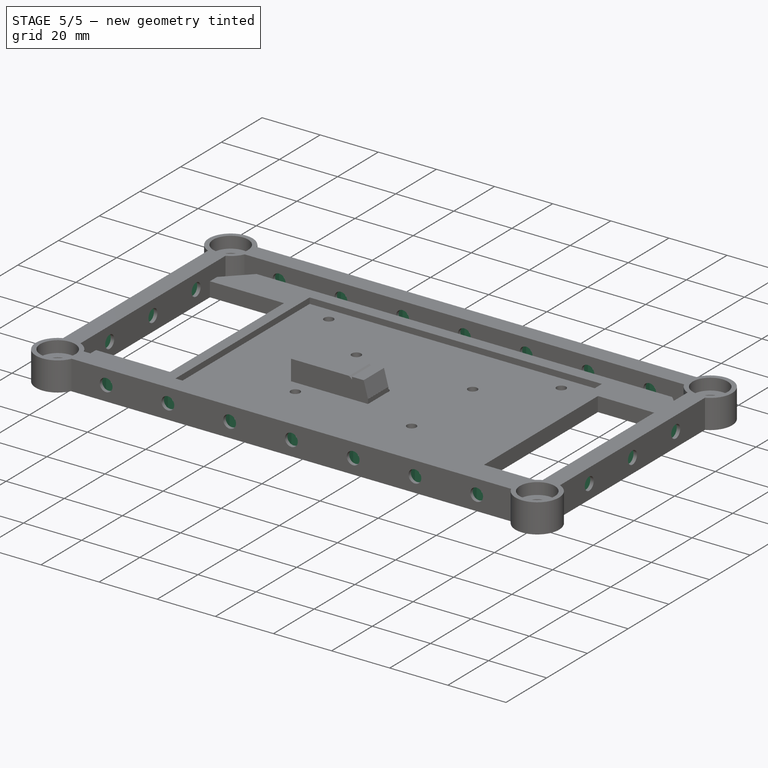
[diagram: stage 5 of 5 — iso view after this stage's code; geometry added in this stage tinted green]
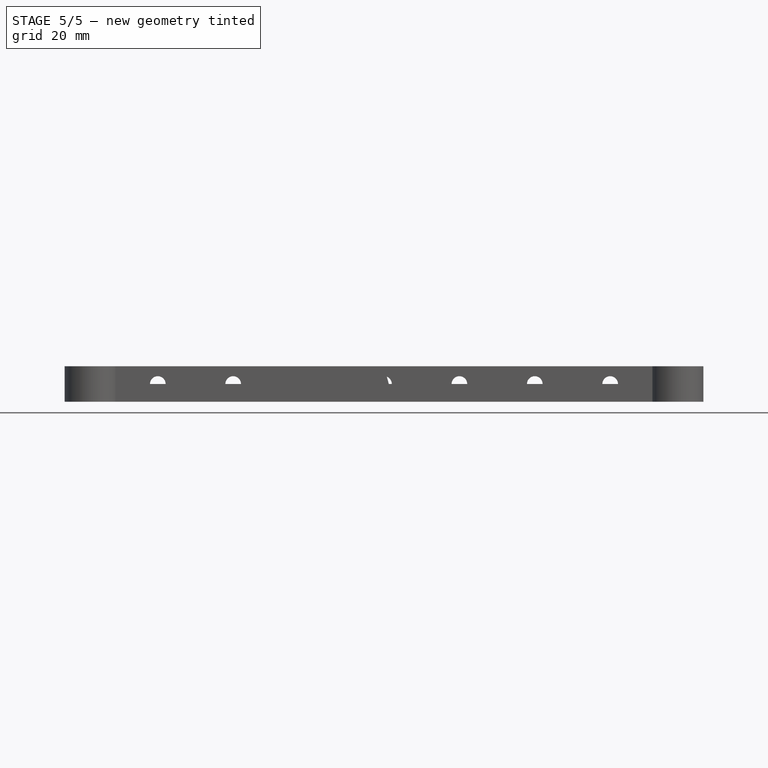
[diagram: stage 5 of 5 — front view after this stage's code; geometry added in this stage tinted green]
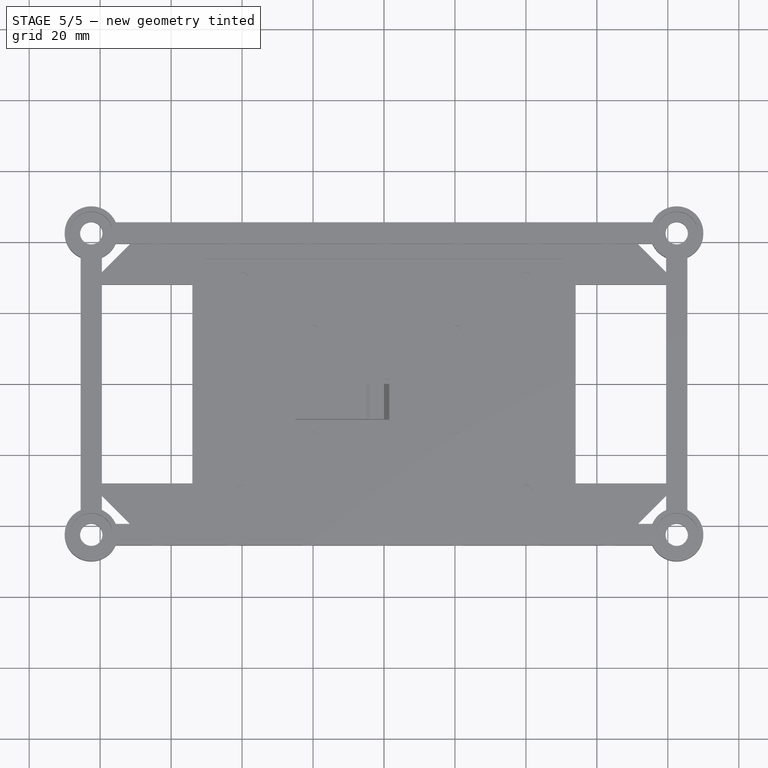
[diagram: stage 5 of 5 — top view after this stage's code; geometry added in this stage tinted green]
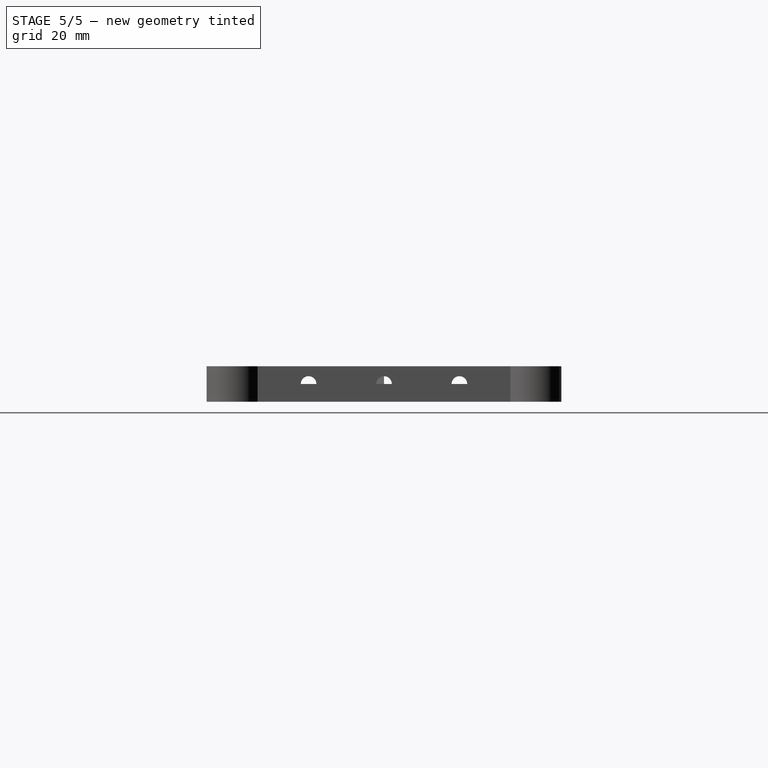
[diagram: stage 5 of 5 — right view after this stage's code; geometry added in this stage tinted green]
FEATURE [Sketcher::SketchObject] Sketch005
  AttachmentOffset = pos=(0,0,40.7) rot=(0,0,1;0rad)
  MapMode = 5
  Placement = pos=(0,-40.7,-9e-15) rot=(1,0,0;1.5708rad)
  Support = -> [XZ_Plane]
  expr: Constraints[14] = Spreadsheet.m4_nut_diameter
  expr: Constraints[13] = Spreadsheet.frame_height / 2
  expr: Constraints[1] = Spreadsheet.frame_height / 2
  sketch-geometry (57):
    g0: LineSegment [constr] StartX=-82.5 StartY=5 StartZ=0 EndX=82.5 EndY=5 EndZ=0
    g1: LineSegment StartX=3.3775 StartY=3.05 StartZ=0 EndX=3.3775 EndY=6.95 EndZ=0
    g2: LineSegment StartX=-3.3775 StartY=6.95 StartZ=0 EndX=-3.3775 EndY=3.05 EndZ=0
    g3: Circle [constr] CenterX=0 CenterY=5 CenterZ=0 NormalX=0 NormalY=0 NormalZ=1 AngleXU=0 Radius=3.9
    g4: LineSegment StartX=0 StartY=8.9 StartZ=0 EndX=3.3775 EndY=6.95 EndZ=0
    g5: LineSegment StartX=-3.3775 StartY=6.95 StartZ=0 EndX=0 EndY=8.9 EndZ=0
    g6: LineSegment StartX=-3.3775 StartY=3.05 StartZ=0 EndX=-3.3775 EndY=-1.95 EndZ=0
    g7: LineSegment StartX=3.3775 StartY=3.05 StartZ=0 EndX=3.3775 EndY=-1.95 EndZ=0
    g8: LineSegment StartX=-3.3775 StartY=-1.95 StartZ=0 EndX=3.3775 EndY=-1.95 EndZ=0
    g9: LineSegment StartX=-17.8725 StartY=3.05 StartZ=0 EndX=-17.8725 EndY=6.95 EndZ=0
    g10: LineSegment StartX=-24.6275 StartY=6.95 StartZ=0 EndX=-24.6275 EndY=3.05 EndZ=0
    g11: Circle [constr] CenterX=-21.25 CenterY=5 CenterZ=0 NormalX=0 NormalY=0 NormalZ=1 AngleXU=0 Radius=3.9
    g12: LineSegment StartX=-21.25 StartY=8.9 StartZ=0 EndX=-17.8725 EndY=6.95 EndZ=0
    g13: LineSegment StartX=-24.6275 StartY=6.95 StartZ=0 EndX=-21.25 EndY=8.9 EndZ=0
    g14: LineSegment StartX=-24.6275 StartY=3.05 StartZ=0 EndX=-24.6275 EndY=-1.95 EndZ=0
    g15: LineSegment StartX=-17.8725 StartY=3.05 StartZ=0 EndX=-17.8725 EndY=-1.95 EndZ=0
    g16: LineSegment StartX=-24.6275 StartY=-1.95 StartZ=0 EndX=-17.8725 EndY=-1.95 EndZ=0
    g17: LineSegment StartX=-39.1225 StartY=3.05 StartZ=0 EndX=-39.1225 EndY=6.95 EndZ=0
    g18: LineSegment StartX=-45.8775 StartY=6.95 StartZ=0 EndX=-45.8775 EndY=3.05 EndZ=0
    g19: Circle [constr] CenterX=-42.5 CenterY=5 CenterZ=0 NormalX=0 NormalY=0 NormalZ=1 AngleXU=0 Radius=3.9
    g20: LineSegment StartX=-42.5 StartY=8.9 StartZ=0 EndX=-39.1225 EndY=6.95 EndZ=0
    g21: LineSegment StartX=-45.8775 StartY=6.95 StartZ=0 EndX=-42.5 EndY=8.9 EndZ=0
    g22: LineSegment StartX=-45.8775 StartY=3.05 StartZ=0 EndX=-45.8775 EndY=-1.95 EndZ=0
    g23: LineSegment StartX=-39.1225 StartY=3.05 StartZ=0 EndX=-39.1225 EndY=-1.95 EndZ=0
    g24: LineSegment StartX=-45.8775 StartY=-1.95 StartZ=0 EndX=-39.1225 EndY=-1.95 EndZ=0
    g25: LineSegment StartX=-60.3725 StartY=3.05 StartZ=0 EndX=-60.3725 EndY=6.95 EndZ=0
    g26: LineSegment StartX=-67.1275 StartY=6.95 StartZ=0 EndX=-67.1275 EndY=3.05 EndZ=0
    g27: Circle [constr] CenterX=-63.75 CenterY=5 CenterZ=0 NormalX=0 NormalY=0 NormalZ=1 AngleXU=0 Radius=3.9
    g28: LineSegment StartX=-63.75 StartY=8.9 StartZ=0 EndX=-60.3725 EndY=6.95 EndZ=0
    g29: LineSegment StartX=-67.1275 StartY=6.95 StartZ=0 EndX=-63.75 EndY=8.9 EndZ=0
    g30: LineSegment StartX=-67.1275 StartY=3.05 StartZ=0 EndX=-67.1275 EndY=-1.95 EndZ=0
    g31: LineSegment StartX=-60.3725 StartY=3.05 StartZ=0 EndX=-60.3725 EndY=-1.95 EndZ=0
    g32: LineSegment StartX=-67.1275 StartY=-1.95 StartZ=0 EndX=-60.3725 EndY=-1.95 EndZ=0
    g33: LineSegment StartX=24.6275 StartY=3.05 StartZ=0 EndX=24.6275 EndY=6.95 EndZ=0
    g34: LineSegment StartX=17.8725 StartY=6.95 StartZ=0 EndX=17.8725 EndY=3.05 EndZ=0
    g35: Circle [constr] CenterX=21.25 CenterY=5 CenterZ=0 NormalX=0 NormalY=0 NormalZ=1 AngleXU=0 Radius=3.9
    g36: LineSegment StartX=21.25 StartY=8.9 StartZ=0 EndX=24.6275 EndY=6.95 EndZ=0
    g37: LineSegment StartX=17.8725 StartY=6.95 StartZ=0 EndX=21.25 EndY=8.9 EndZ=0
    g38: LineSegment StartX=17.8725 StartY=3.05 StartZ=0 EndX=17.8725 EndY=-1.95 EndZ=0
    g39: LineSegment StartX=24.6275 StartY=3.05 StartZ=0 EndX=24.6275 EndY=-1.95 EndZ=0
    g40: LineSegment StartX=17.8725 StartY=-1.95 StartZ=0 EndX=24.6275 EndY=-1.95 EndZ=0
    g41: LineSegment StartX=45.8775 StartY=3.05 StartZ=0 EndX=45.8775 EndY=6.95 EndZ=0
    g42: LineSegment StartX=39.1225 StartY=6.95 StartZ=0 EndX=39.1225 EndY=3.05 EndZ=0
    g43: Circle [constr] CenterX=42.5 CenterY=5 CenterZ=0 NormalX=0 NormalY=0 NormalZ=1 AngleXU=0 Radius=3.9
    g44: LineSegment StartX=42.5 StartY=8.9 StartZ=0 EndX=45.8775 EndY=6.95 EndZ=0
    g45: LineSegment StartX=39.1225 StartY=6.95 StartZ=0 EndX=42.5 EndY=8.9 EndZ=0
    g46: LineSegment StartX=39.1225 StartY=3.05 StartZ=0 EndX=39.1225 EndY=-1.95 EndZ=0
    g47: LineSegment StartX=45.8775 StartY=3.05 StartZ=0 EndX=45.8775 EndY=-1.95 EndZ=0
    g48: LineSegment StartX=39.1225 StartY=-1.95 StartZ=0 EndX=45.8775 EndY=-1.95 EndZ=0
    g49: LineSegment StartX=67.1275 StartY=3.05 StartZ=0 EndX=67.1275 EndY=6.95 EndZ=0
    g50: LineSegment StartX=60.3725 StartY=6.95 StartZ=0 EndX=60.3725 EndY=3.05 EndZ=0
    g51: Circle [constr] CenterX=63.75 CenterY=5 CenterZ=0 NormalX=0 NormalY=0 NormalZ=1 AngleXU=0 Radius=3.9
    g52: LineSegment StartX=63.75 StartY=8.9 StartZ=0 EndX=67.1275 EndY=6.95 EndZ=0
    g53: LineSegment StartX=60.3725 StartY=6.95 StartZ=0 EndX=63.75 EndY=8.9 EndZ=0
    g54: LineSegment StartX=60.3725 StartY=3.05 StartZ=0 EndX=60.3725 EndY=-1.95 EndZ=0
    g55: LineSegment StartX=67.1275 StartY=3.05 StartZ=0 EndX=67.1275 EndY=-1.95 EndZ=0
    g56: LineSegment StartX=60.3725 StartY=-1.95 StartZ=0 EndX=67.1275 EndY=-1.95 EndZ=0
  constraints (172):
    c: Horizontal(g0)
    c: DistanceY(g-1,g0) = 5
    c: DistanceX(g0,g-1) = 82.5
    c: DistanceX(g-1,g0) = 82.5
    c: Equal(g1,g2)
    c: PointOnObject(g1,g3)
    c: PointOnObject(g2,g3)
    c: PointOnObject(g2,g3)
    c: PointOnObject(g1,g3)
    c: Coincident(g4,g1)
    c: Vertical(g2)
    c: Vertical(g1)
    c: PointOnObject(g3,g-2)
    c: DistanceY(g-1,g3) = 5
    c: Diameter(g3) = 7.8
    c: PointOnObject(g4,g-2)
    c: PointOnObject(g4,g3)
    c: Coincident(g5,g2)
    c: Coincident(g4,g5)
    c: Coincident(g6,g2)
    c: Vertical(g6)
    c: Coincident(g7,g1)
    c: Vertical(g7)
    c: Coincident(g8,g6)
    c: Coincident(g8,g7)
    c: Horizontal(g8)
    c: DistanceY(g6,g6) = 5
    c: Equal(g5,g2)
    c: Equal(g9,g10)
    c: PointOnObject(g9,g11)
    c: PointOnObject(g10,g11)
    c: PointOnObject(g10,g11)
    c: PointOnObject(g9,g11)
    c: Coincident(g12,g9)
    c: Vertical(g10)
    c: Vertical(g9)
    c: Equal(g3,g11) = 7.8
    c: PointOnObject(g12,g11)
    c: Coincident(g13,g10)
    c: Coincident(g12,g13)
    c: Coincident(g14,g10)
    c: Vertical(g14)
    c: Coincident(g15,g9)
    c: Vertical(g15)
    c: Coincident(g16,g14)
    c: Coincident(g16,g15)
    c: Horizontal(g16)
    c: Equal(g6,g14) = 5
    c: Equal(g13,g10)
    c: PointOnObject(g11,g0)
    c: DistanceX(g11,g3) = 21.25
    c: Equal(g12,g13)
    c: Equal(g17,g18)
    c: PointOnObject(g17,g19)
    c: PointOnObject(g18,g19)
    c: PointOnObject(g18,g19)
    c: PointOnObject(g17,g19)
    c: Coincident(g20,g17)
    c: Vertical(g18)
    c: Vertical(g17)
    c: Equal(g3,g19) = 7.8
    c: PointOnObject(g20,g19)
    c: Coincident(g21,g18)
    c: Coincident(g20,g21)
    c: Coincident(g22,g18)
    c: Vertical(g22)
    c: Coincident(g23,g17)
    c: Vertical(g23)
    c: Coincident(g24,g22)
    c: Coincident(g24,g23)
    c: Horizontal(g24)
    c: Equal(g6,g22) = 5
    c: Equal(g21,g18)
    c: PointOnObject(g19,g0)
    c: DistanceX(g19,g11) = 21.25
    c: Equal(g25,g26)
    c: PointOnObject(g25,g27)
    c: PointOnObject(g26,g27)
    c: PointOnObject(g26,g27)
    c: PointOnObject(g25,g27)
    c: Coincident(g28,g25)
    c: Vertical(g26)
    c: Vertical(g25)
    c: Equal(g3,g27) = 7.8
    c: PointOnObject(g28,g27)
    c: Coincident(g29,g26)
    c: Coincident(g28,g29)
    c: Coincident(g30,g26)
    c: Vertical(g30)
    c: Coincident(g31,g25)
    c: Vertical(g31)
    c: Coincident(g32,g30)
    c: Coincident(g32,g31)
    c: Horizontal(g32)
    c: Equal(g6,g30) = 5
    c: Equal(g29,g26)
    c: PointOnObject(g27,g0)
    c: DistanceX(g27,g19) = 21.25
    c: Equal(g28,g29)
    c: Equal(g20,g21)
    c: Equal(g33,g34)
    c: PointOnObject(g33,g35)
    c: PointOnObject(g34,g35)
    c: PointOnObject(g34,g35)
    c: PointOnObject(g33,g35)
    c: Coincident(g36,g33)
    c: Vertical(g34)
    c: Vertical(g33)
    c: Equal(g3,g35) = 7.8
    c: PointOnObject(g36,g35)
    c: Coincident(g37,g34)
    c: Coincident(g36,g37)
    c: Coincident(g38,g34)
    c: Vertical(g38)
    c: Coincident(g39,g33)
    c: Vertical(g39)
    c: Coincident(g40,g38)
    c: Coincident(g40,g39)
    c: Horizontal(g40)
    c: Equal(g6,g38) = 5
    c: Equal(g37,g34)
    c: Equal(g36,g37)
    c: PointOnObject(g35,g0)
    c: DistanceX(g3,g35) = 21.25
    c: Equal(g41,g42)
    c: PointOnObject(g41,g43)
    c: PointOnObject(g42,g43)
    c: PointOnObject(g42,g43)
    c: PointOnObject(g41,g43)
    c: Coincident(g44,g41)
    c: Vertical(g42)
    c: Vertical(g41)
    c: Equal(g3,g43) = 7.8
    c: PointOnObject(g44,g43)
    c: Coincident(g45,g42)
    c: Coincident(g44,g45)
    c: Coincident(g46,g42)
    c: Vertical(g46)
    c: Coincident(g47,g41)
    c: Vertical(g47)
    c: Coincident(g48,g46)
    c: Coincident(g48,g47)
    c: Horizontal(g48)
    c: Equal(g6,g46) = 5
    c: Equal(g45,g42)
    c: PointOnObject(g43,g0)
    c: DistanceX(g35,g43) = 21.25
    c: Equal(g44,g45)
    c: Equal(g49,g50)
    c: PointOnObject(g49,g51)
    c: PointOnObject(g50,g51)
    c: PointOnObject(g50,g51)
    c: PointOnObject(g49,g51)
    c: Coincident(g52,g49)
    c: Vertical(g50)
    c: Vertical(g49)
    c: Equal(g3,g51) = 7.8
    c: PointOnObject(g52,g51)
    c: Coincident(g53,g50)
    c: Coincident(g52,g53)
    c: Coincident(g54,g50)
    c: Vertical(g54)
    c: Coincident(g55,g49)
    c: Vertical(g55)
    c: Coincident(g56,g54)
    c: Coincident(g56,g55)
    c: Horizontal(g56)
    c: Equal(g6,g54) = 5
    c: Equal(g53,g50)
    c: PointOnObject(g51,g0)
    c: DistanceX(g43,g51) = 21.25
    c: Equal(g52,g53)
FEATURE [PartDesign::Pocket] Pocket003  label="wide nuts a"
  BaseFeature = -> Pocket002
  Length = 3.6
  Length2 = 100
  Profile = -> Sketch005
  Reversed = true
  Type = 0
  expr: Length = Spreadsheet.m4_nutcatch_width
FEATURE [Sketcher::SketchObject] Sketch006
  AttachmentOffset = pos=(0,0,-40.7) rot=(0,0,1;0rad)
  MapMode = 5
  Placement = pos=(0,40.7,9e-15) rot=(1,0,0;1.5708rad)
  Support = -> [XZ_Plane]
  expr: Constraints[14] = Spreadsheet.m4_nut_diameter
  expr: Constraints[13] = Spreadsheet.frame_height / 2
  expr: Constraints[1] = Spreadsheet.frame_height / 2
  sketch-geometry (57):
    g0: LineSegment [constr] StartX=-82.5 StartY=5 StartZ=0 EndX=82.5 EndY=5 EndZ=0
    g1: LineSegment StartX=3.3775 StartY=3.05 StartZ=0 EndX=3.3775 EndY=6.95 EndZ=0
    g2: LineSegment StartX=-3.3775 StartY=6.95 StartZ=0 EndX=-3.3775 EndY=3.05 EndZ=0
    g3: Circle [constr] CenterX=0 CenterY=5 CenterZ=0 NormalX=0 NormalY=0 NormalZ=1 AngleXU=0 Radius=3.9
    g4: LineSegment StartX=0 StartY=8.9 StartZ=0 EndX=3.3775 EndY=6.95 EndZ=0
    g5: LineSegment StartX=-3.3775 StartY=6.95 StartZ=0 EndX=0 EndY=8.9 EndZ=0
    g6: LineSegment StartX=-3.3775 StartY=3.05 StartZ=0 EndX=-3.3775 EndY=-1.95 EndZ=0
    g7: LineSegment StartX=3.3775 StartY=3.05 StartZ=0 EndX=3.3775 EndY=-1.95 EndZ=0
    g8: LineSegment StartX=-3.3775 StartY=-1.95 StartZ=0 EndX=3.3775 EndY=-1.95 EndZ=0
    g9: LineSegment StartX=-17.8725 StartY=3.05 StartZ=0 EndX=-17.8725 EndY=6.95 EndZ=0
    g10: LineSegment StartX=-24.6275 StartY=6.95 StartZ=0 EndX=-24.6275 EndY=3.05 EndZ=0
    g11: Circle [constr] CenterX=-21.25 CenterY=5 CenterZ=0 NormalX=0 NormalY=0 NormalZ=1 AngleXU=0 Radius=3.9
    g12: LineSegment StartX=-21.25 StartY=8.9 StartZ=0 EndX=-17.8725 EndY=6.95 EndZ=0
    g13: LineSegment StartX=-24.6275 StartY=6.95 StartZ=0 EndX=-21.25 EndY=8.9 EndZ=0
    g14: LineSegment StartX=-24.6275 StartY=3.05 StartZ=0 EndX=-24.6275 EndY=-1.95 EndZ=0
    g15: LineSegment StartX=-17.8725 StartY=3.05 StartZ=0 EndX=-17.8725 EndY=-1.95 EndZ=0
    g16: LineSegment StartX=-24.6275 StartY=-1.95 StartZ=0 EndX=-17.8725 EndY=-1.95 EndZ=0
    g17: LineSegment StartX=-39.1225 StartY=3.05 StartZ=0 EndX=-39.1225 EndY=6.95 EndZ=0
    g18: LineSegment StartX=-45.8775 StartY=6.95 StartZ=0 EndX=-45.8775 EndY=3.05 EndZ=0
    g19: Circle [constr] CenterX=-42.5 CenterY=5 CenterZ=0 NormalX=0 NormalY=0 NormalZ=1 AngleXU=0 Radius=3.9
    g20: LineSegment StartX=-42.5 StartY=8.9 StartZ=0 EndX=-39.1225 EndY=6.95 EndZ=0
    g21: LineSegment StartX=-45.8775 StartY=6.95 StartZ=0 EndX=-42.5 EndY=8.9 EndZ=0
    g22: LineSegment StartX=-45.8775 StartY=3.05 StartZ=0 EndX=-45.8775 EndY=-1.95 EndZ=0
    g23: LineSegment StartX=-39.1225 StartY=3.05 StartZ=0 EndX=-39.1225 EndY=-1.95 EndZ=0
    g24: LineSegment StartX=-45.8775 StartY=-1.95 StartZ=0 EndX=-39.1225 EndY=-1.95 EndZ=0
    g25: LineSegment StartX=-60.3725 StartY=3.05 StartZ=0 EndX=-60.3725 EndY=6.95 EndZ=0
    g26: LineSegment StartX=-67.1275 StartY=6.95 StartZ=0 EndX=-67.1275 EndY=3.05 EndZ=0
    g27: Circle [constr] CenterX=-63.75 CenterY=5 CenterZ=0 NormalX=0 NormalY=0 NormalZ=1 AngleXU=0 Radius=3.9
    g28: LineSegment StartX=-63.75 StartY=8.9 StartZ=0 EndX=-60.3725 EndY=6.95 EndZ=0
    g29: LineSegment StartX=-67.1275 StartY=6.95 StartZ=0 EndX=-63.75 EndY=8.9 EndZ=0
    g30: LineSegment StartX=-67.1275 StartY=3.05 StartZ=0 EndX=-67.1275 EndY=-1.95 EndZ=0
    g31: LineSegment StartX=-60.3725 StartY=3.05 StartZ=0 EndX=-60.3725 EndY=-1.95 EndZ=0
    g32: LineSegment StartX=-67.1275 StartY=-1.95 StartZ=0 EndX=-60.3725 EndY=-1.95 EndZ=0
    g33: LineSegment StartX=24.6275 StartY=3.05 StartZ=0 EndX=24.6275 EndY=6.95 EndZ=0
    g34: LineSegment StartX=17.8725 StartY=6.95 StartZ=0 EndX=17.8725 EndY=3.05 EndZ=0
    g35: Circle [constr] CenterX=21.25 CenterY=5 CenterZ=0 NormalX=0 NormalY=0 NormalZ=1 AngleXU=0 Radius=3.9
    g36: LineSegment StartX=21.25 StartY=8.9 StartZ=0 EndX=24.6275 EndY=6.95 EndZ=0
    g37: LineSegment StartX=17.8725 StartY=6.95 StartZ=0 EndX=21.25 EndY=8.9 EndZ=0
    g38: LineSegment StartX=17.8725 StartY=3.05 StartZ=0 EndX=17.8725 EndY=-1.95 EndZ=0
    g39: LineSegment StartX=24.6275 StartY=3.05 StartZ=0 EndX=24.6275 EndY=-1.95 EndZ=0
    g40: LineSegment StartX=17.8725 StartY=-1.95 StartZ=0 EndX=24.6275 EndY=-1.95 EndZ=0
    g41: LineSegment StartX=45.8775 StartY=3.05 StartZ=0 EndX=45.8775 EndY=6.95 EndZ=0
    g42: LineSegment StartX=39.1225 StartY=6.95 StartZ=0 EndX=39.1225 EndY=3.05 EndZ=0
    g43: Circle [constr] CenterX=42.5 CenterY=5 CenterZ=0 NormalX=0 NormalY=0 NormalZ=1 AngleXU=0 Radius=3.9
    g44: LineSegment StartX=42.5 StartY=8.9 StartZ=0 EndX=45.8775 EndY=6.95 EndZ=0
    g45: LineSegment StartX=39.1225 StartY=6.95 StartZ=0 EndX=42.5 EndY=8.9 EndZ=0
    g46: LineSegment StartX=39.1225 StartY=3.05 StartZ=0 EndX=39.1225 EndY=-1.95 EndZ=0
    g47: LineSegment StartX=45.8775 StartY=3.05 StartZ=0 EndX=45.8775 EndY=-1.95 EndZ=0
    g48: LineSegment StartX=39.1225 StartY=-1.95 StartZ=0 EndX=45.8775 EndY=-1.95 EndZ=0
    g49: LineSegment StartX=67.1275 StartY=3.05 StartZ=0 EndX=67.1275 EndY=6.95 EndZ=0
    g50: LineSegment StartX=60.3725 StartY=6.95 StartZ=0 EndX=60.3725 EndY=3.05 EndZ=0
    g51: Circle [constr] CenterX=63.75 CenterY=5 CenterZ=0 NormalX=0 NormalY=0 NormalZ=1 AngleXU=0 Radius=3.9
    g52: LineSegment StartX=63.75 StartY=8.9 StartZ=0 EndX=67.1275 EndY=6.95 EndZ=0
    g53: LineSegment StartX=60.3725 StartY=6.95 StartZ=0 EndX=63.75 EndY=8.9 EndZ=0
    g54: LineSegment StartX=60.3725 StartY=3.05 StartZ=0 EndX=60.3725 EndY=-1.95 EndZ=0
    g55: LineSegment StartX=67.1275 StartY=3.05 StartZ=0 EndX=67.1275 EndY=-1.95 EndZ=0
    g56: LineSegment StartX=60.3725 StartY=-1.95 StartZ=0 EndX=67.1275 EndY=-1.95 EndZ=0
  constraints (172):
    c: Horizontal(g0)
    c: DistanceY(g-1,g0) = 5
    c: DistanceX(g0,g-1) = 82.5
    c: DistanceX(g-1,g0) = 82.5
    c: Equal(g1,g2)
    c: PointOnObject(g1,g3)
    c: PointOnObject(g2,g3)
    c: PointOnObject(g2,g3)
    c: PointOnObject(g1,g3)
    c: Coincident(g4,g1)
    c: Vertical(g2)
    c: Vertical(g1)
    c: PointOnObject(g3,g-2)
    c: DistanceY(g-1,g3) = 5
    c: Diameter(g3) = 7.8
    c: PointOnObject(g4,g-2)
    c: PointOnObject(g4,g3)
    c: Coincident(g5,g2)
    c: Coincident(g4,g5)
    c: Coincident(g6,g2)
    c: Vertical(g6)
    c: Coincident(g7,g1)
    c: Vertical(g7)
    c: Coincident(g8,g6)
    c: Coincident(g8,g7)
    c: Horizontal(g8)
    c: DistanceY(g6,g6) = 5
    c: Equal(g5,g2)
    c: Equal(g9,g10)
    c: PointOnObject(g9,g11)
    c: PointOnObject(g10,g11)
    c: PointOnObject(g10,g11)
    c: PointOnObject(g9,g11)
    c: Coincident(g12,g9)
    c: Vertical(g10)
    c: Vertical(g9)
    c: Equal(g3,g11) = 7.8
    c: PointOnObject(g12,g11)
    c: Coincident(g13,g10)
    c: Coincident(g12,g13)
    c: Coincident(g14,g10)
    c: Vertical(g14)
    c: Coincident(g15,g9)
    c: Vertical(g15)
    c: Coincident(g16,g14)
    c: Coincident(g16,g15)
    c: Horizontal(g16)
    c: Equal(g6,g14) = 5
    c: Equal(g13,g10)
    c: PointOnObject(g11,g0)
    c: DistanceX(g11,g3) = 21.25
    c: Equal(g12,g13)
    c: Equal(g17,g18)
    c: PointOnObject(g17,g19)
    c: PointOnObject(g18,g19)
    c: PointOnObject(g18,g19)
    c: PointOnObject(g17,g19)
    c: Coincident(g20,g17)
    c: Vertical(g18)
    c: Vertical(g17)
    c: Equal(g3,g19) = 7.8
    c: PointOnObject(g20,g19)
    c: Coincident(g21,g18)
    c: Coincident(g20,g21)
    c: Coincident(g22,g18)
    c: Vertical(g22)
    c: Coincident(g23,g17)
    c: Vertical(g23)
    c: Coincident(g24,g22)
    c: Coincident(g24,g23)
    c: Horizontal(g24)
    c: Equal(g6,g22) = 5
    c: Equal(g21,g18)
    c: PointOnObject(g19,g0)
    c: DistanceX(g19,g11) = 21.25
    c: Equal(g25,g26)
    c: PointOnObject(g25,g27)
    c: PointOnObject(g26,g27)
    c: PointOnObject(g26,g27)
    c: PointOnObject(g25,g27)
    c: Coincident(g28,g25)
    c: Vertical(g26)
    c: Vertical(g25)
    c: Equal(g3,g27) = 7.8
    c: PointOnObject(g28,g27)
    c: Coincident(g29,g26)
    c: Coincident(g28,g29)
    c: Coincident(g30,g26)
    c: Vertical(g30)
    c: Coincident(g31,g25)
    c: Vertical(g31)
    c: Coincident(g32,g30)
    c: Coincident(g32,g31)
    c: Horizontal(g32)
    c: Equal(g6,g30) = 5
    c: Equal(g29,g26)
    c: PointOnObject(g27,g0)
    c: DistanceX(g27,g19) = 21.25
    c: Equal(g28,g29)
    c: Equal(g20,g21)
    c: Equal(g33,g34)
    c: PointOnObject(g33,g35)
    c: PointOnObject(g34,g35)
    c: PointOnObject(g34,g35)
    c: PointOnObject(g33,g35)
    c: Coincident(g36,g33)
    c: Vertical(g34)
    c: Vertical(g33)
    c: Equal(g3,g35) = 7.8
    c: PointOnObject(g36,g35)
    c: Coincident(g37,g34)
    c: Coincident(g36,g37)
    c: Coincident(g38,g34)
    c: Vertical(g38)
    c: Coincident(g39,g33)
    c: Vertical(g39)
    c: Coincident(g40,g38)
    c: Coincident(g40,g39)
    c: Horizontal(g40)
    c: Equal(g6,g38) = 5
    c: Equal(g37,g34)
    c: Equal(g36,g37)
    c: PointOnObject(g35,g0)
    c: DistanceX(g3,g35) = 21.25
    c: Equal(g41,g42)
    c: PointOnObject(g41,g43)
    c: PointOnObject(g42,g43)
    c: PointOnObject(g42,g43)
    c: PointOnObject(g41,g43)
    c: Coincident(g44,g41)
    c: Vertical(g42)
    c: Vertical(g41)
    c: Equal(g3,g43) = 7.8
    c: PointOnObject(g44,g43)
    c: Coincident(g45,g42)
    c: Coincident(g44,g45)
    c: Coincident(g46,g42)
    c: Vertical(g46)
    c: Coincident(g47,g41)
    c: Vertical(g47)
    c: Coincident(g48,g46)
    c: Coincident(g48,g47)
    c: Horizontal(g48)
    c: Equal(g6,g46) = 5
    c: Equal(g45,g42)
    c: PointOnObject(g43,g0)
    c: DistanceX(g35,g43) = 21.25
    c: Equal(g44,g45)
    c: Equal(g49,g50)
    c: PointOnObject(g49,g51)
    c: PointOnObject(g50,g51)
    c: PointOnObject(g50,g51)
    c: PointOnObject(g49,g51)
    c: Coincident(g52,g49)
    c: Vertical(g50)
    c: Vertical(g49)
    c: Equal(g3,g51) = 7.8
    c: PointOnObject(g52,g51)
    c: Coincident(g53,g50)
    c: Coincident(g52,g53)
    c: Coincident(g54,g50)
    c: Vertical(g54)
    c: Coincident(g55,g49)
    c: Vertical(g55)
    c: Coincident(g56,g54)
    c: Coincident(g56,g55)
    c: Horizontal(g56)
    c: Equal(g6,g54) = 5
    c: Equal(g53,g50)
    c: PointOnObject(g51,g0)
    c: DistanceX(g43,g51) = 21.25
    c: Equal(g52,g53)
FEATURE [PartDesign::Pocket] Pocket004  label="wide nuts b"
  BaseFeature = -> Pocket003
  Length = 3.6
  Length2 = 100
  Profile = -> Sketch006
  Type = 0
  expr: Length = Spreadsheet.m4_nutcatch_width
FEATURE [Sketcher::SketchObject] Sketch007
  AttachmentOffset = pos=(0,0,-40.7) rot=(0,0,1;0rad)
  MapMode = 5
  Placement = pos=(-80.7,0,0) rot=(0.57735,0.57735,0.57735;2.0944rad)
  expr: Constraints[14] = Spreadsheet.m4_nut_diameter
  expr: Constraints[13] = Spreadsheet.frame_height / 2
  expr: Constraints[1] = Spreadsheet.frame_height / 2
  sketch-geometry (25):
    g0: LineSegment [constr] StartX=-82.5 StartY=5 StartZ=0 EndX=82.5 EndY=5 EndZ=0
    g1: LineSegment StartX=3.3775 StartY=3.05 StartZ=0 EndX=3.3775 EndY=6.95 EndZ=0
    g2: LineSegment StartX=-3.3775 StartY=6.95 StartZ=0 EndX=-3.3775 EndY=3.05 EndZ=0
    g3: Circle [constr] CenterX=0 CenterY=5 CenterZ=0 NormalX=0 NormalY=0 NormalZ=1 AngleXU=0 Radius=3.9
    g4: LineSegment StartX=0 StartY=8.9 StartZ=0 EndX=3.3775 EndY=6.95 EndZ=0
    g5: LineSegment StartX=-3.3775 StartY=6.95 StartZ=0 EndX=0 EndY=8.9 EndZ=0
    g6: LineSegment StartX=-3.3775 StartY=3.05 StartZ=0 EndX=-3.3775 EndY=-1.95 EndZ=0
    g7: LineSegment StartX=3.3775 StartY=3.05 StartZ=0 EndX=3.3775 EndY=-1.95 EndZ=0
    g8: LineSegment StartX=-3.3775 StartY=-1.95 StartZ=0 EndX=3.3775 EndY=-1.95 EndZ=0
    g9: LineSegment StartX=-17.8725 StartY=3.05 StartZ=0 EndX=-17.8725 EndY=6.95 EndZ=0
    g10: LineSegment StartX=-24.6275 StartY=6.95 StartZ=0 EndX=-24.6275 EndY=3.05 EndZ=0
    g11: Circle [constr] CenterX=-21.25 CenterY=5 CenterZ=0 NormalX=0 NormalY=0 NormalZ=1 AngleXU=0 Radius=3.9
    g12: LineSegment StartX=-21.25 StartY=8.9 StartZ=0 EndX=-17.8725 EndY=6.95 EndZ=0
    g13: LineSegment StartX=-24.6275 StartY=6.95 StartZ=0 EndX=-21.25 EndY=8.9 EndZ=0
    g14: LineSegment StartX=-24.6275 StartY=3.05 StartZ=0 EndX=-24.6275 EndY=-1.95 EndZ=0
    g15: LineSegment StartX=-17.8725 StartY=3.05 StartZ=0 EndX=-17.8725 EndY=-1.95 EndZ=0
    g16: LineSegment StartX=-24.6275 StartY=-1.95 StartZ=0 EndX=-17.8725 EndY=-1.95 EndZ=0
    g17: LineSegment StartX=24.6275 StartY=3.05 StartZ=0 EndX=24.6275 EndY=6.95 EndZ=0
    g18: LineSegment StartX=17.8725 StartY=6.95 StartZ=0 EndX=17.8725 EndY=3.05 EndZ=0
    g19: Circle [constr] CenterX=21.25 CenterY=5 CenterZ=0 NormalX=0 NormalY=0 NormalZ=1 AngleXU=0 Radius=3.9
    g20: LineSegment StartX=21.25 StartY=8.9 StartZ=0 EndX=24.6275 EndY=6.95 EndZ=0
    g21: LineSegment StartX=17.8725 StartY=6.95 StartZ=0 EndX=21.25 EndY=8.9 EndZ=0
    g22: LineSegment StartX=17.8725 StartY=3.05 StartZ=0 EndX=17.8725 EndY=-1.95 EndZ=0
    g23: LineSegment StartX=24.6275 StartY=3.05 StartZ=0 EndX=24.6275 EndY=-1.95 EndZ=0
    g24: LineSegment StartX=17.8725 StartY=-1.95 StartZ=0 EndX=24.6275 EndY=-1.95 EndZ=0
  constraints (76):
    c: Horizontal(g0)
    c: DistanceY(g-1,g0) = 5
    c: DistanceX(g0,g-1) = 82.5
    c: DistanceX(g-1,g0) = 82.5
    c: Equal(g1,g2)
    c: PointOnObject(g1,g3)
    c: PointOnObject(g2,g3)
    c: PointOnObject(g2,g3)
    c: PointOnObject(g1,g3)
    c: Coincident(g4,g1)
    c: Vertical(g2)
    c: Vertical(g1)
    c: PointOnObject(g3,g-2)
    c: DistanceY(g-1,g3) = 5
    c: Diameter(g3) = 7.8
    c: PointOnObject(g4,g-2)
    c: PointOnObject(g4,g3)
    c: Coincident(g5,g2)
    c: Coincident(g4,g5)
    c: Coincident(g6,g2)
    c: Vertical(g6)
    c: Coincident(g7,g1)
    c: Vertical(g7)
    c: Coincident(g8,g6)
    c: Coincident(g8,g7)
    c: Horizontal(g8)
    c: DistanceY(g6,g6) = 5
    c: Equal(g5,g2)
    c: Equal(g9,g10)
    c: PointOnObject(g9,g11)
    c: PointOnObject(g10,g11)
    c: PointOnObject(g10,g11)
    c: PointOnObject(g9,g11)
    c: Coincident(g12,g9)
    c: Vertical(g10)
    c: Vertical(g9)
    c: Equal(g3,g11) = 7.8
    c: PointOnObject(g12,g11)
    c: Coincident(g13,g10)
    c: Coincident(g12,g13)
    c: Coincident(g14,g10)
    c: Vertical(g14)
    c: Coincident(g15,g9)
    c: Vertical(g15)
    c: Coincident(g16,g14)
    c: Coincident(g16,g15)
    c: Horizontal(g16)
    c: Equal(g6,g14) = 5
    c: Equal(g13,g10)
    c: PointOnObject(g11,g0)
    c: DistanceX(g11,g3) = 21.25
    c: Equal(g12,g13)
    c: Equal(g17,g18)
    c: PointOnObject(g17,g19)
    c: PointOnObject(g18,g19)
    c: PointOnObject(g18,g19)
    c: PointOnObject(g17,g19)
    c: Coincident(g20,g17)
    c: Vertical(g18)
    c: Vertical(g17)
    c: Equal(g3,g19) = 7.8
    c: PointOnObject(g20,g19)
    c: Coincident(g21,g18)
    c: Coincident(g20,g21)
    c: Coincident(g22,g18)
    c: Vertical(g22)
    c: Coincident(g23,g17)
    c: Vertical(g23)
    c: Coincident(g24,g22)
    c: Coincident(g24,g23)
    c: Horizontal(g24)
    c: Equal(g6,g22) = 5
    c: Equal(g21,g18)
    c: Equal(g20,g21)
    c: PointOnObject(g19,g0)
    c: DistanceX(g3,g19) = 21.25
FEATURE [PartDesign::Pocket] Pocket005  label="length nuts a"
  BaseFeature = -> Pocket004
  Length = 3.6
  Length2 = 100
  Profile = -> Sketch007
  Type = 0
  expr: Length = Spreadsheet.m4_nutcatch_width
FEATURE [Sketcher::SketchObject] Sketch008
  AttachmentOffset = pos=(0,0,-40.7) rot=(0,0,1;0rad)
  MapMode = 5
  Placement = pos=(80.7,0,0) rot=(0.57735,0.57735,0.57735;2.0944rad)
  expr: Constraints[14] = Spreadsheet.m4_nut_diameter
  expr: Constraints[13] = Spreadsheet.frame_height / 2
  expr: Constraints[1] = Spreadsheet.frame_height / 2
  sketch-geometry (25):
    g0: LineSegment [constr] StartX=-82.5 StartY=5 StartZ=0 EndX=82.5 EndY=5 EndZ=0
    g1: LineSegment StartX=3.3775 StartY=3.05 StartZ=0 EndX=3.3775 EndY=6.95 EndZ=0
    g2: LineSegment StartX=-3.3775 StartY=6.95 StartZ=0 EndX=-3.3775 EndY=3.05 EndZ=0
    g3: Circle [constr] CenterX=0 CenterY=5 CenterZ=0 NormalX=0 NormalY=0 NormalZ=1 AngleXU=0 Radius=3.9
    g4: LineSegment StartX=0 StartY=8.9 StartZ=0 EndX=3.3775 EndY=6.95 EndZ=0
    g5: LineSegment StartX=-3.3775 StartY=6.95 StartZ=0 EndX=0 EndY=8.9 EndZ=0
    g6: LineSegment StartX=-3.3775 StartY=3.05 StartZ=0 EndX=-3.3775 EndY=-1.95 EndZ=0
    g7: LineSegment StartX=3.3775 StartY=3.05 StartZ=0 EndX=3.3775 EndY=-1.95 EndZ=0
    g8: LineSegment StartX=-3.3775 StartY=-1.95 StartZ=0 EndX=3.3775 EndY=-1.95 EndZ=0
    g9: LineSegment StartX=-17.8725 StartY=3.05 StartZ=0 EndX=-17.8725 EndY=6.95 EndZ=0
    g10: LineSegment StartX=-24.6275 StartY=6.95 StartZ=0 EndX=-24.6275 EndY=3.05 EndZ=0
    g11: Circle [constr] CenterX=-21.25 CenterY=5 CenterZ=0 NormalX=0 NormalY=0 NormalZ=1 AngleXU=0 Radius=3.9
    g12: LineSegment StartX=-21.25 StartY=8.9 StartZ=0 EndX=-17.8725 EndY=6.95 EndZ=0
    g13: LineSegment StartX=-24.6275 StartY=6.95 StartZ=0 EndX=-21.25 EndY=8.9 EndZ=0
    g14: LineSegment StartX=-24.6275 StartY=3.05 StartZ=0 EndX=-24.6275 EndY=-1.95 EndZ=0
    g15: LineSegment StartX=-17.8725 StartY=3.05 StartZ=0 EndX=-17.8725 EndY=-1.95 EndZ=0
    g16: LineSegment StartX=-24.6275 StartY=-1.95 StartZ=0 EndX=-17.8725 EndY=-1.95 EndZ=0
    g17: LineSegment StartX=24.6275 StartY=3.05 StartZ=0 EndX=24.6275 EndY=6.95 EndZ=0
    g18: LineSegment StartX=17.8725 StartY=6.95 StartZ=0 EndX=17.8725 EndY=3.05 EndZ=0
    g19: Circle [constr] CenterX=21.25 CenterY=5 CenterZ=0 NormalX=0 NormalY=0 NormalZ=1 AngleXU=0 Radius=3.9
    g20: LineSegment StartX=21.25 StartY=8.9 StartZ=0 EndX=24.6275 EndY=6.95 EndZ=0
    g21: LineSegment StartX=17.8725 StartY=6.95 StartZ=0 EndX=21.25 EndY=8.9 EndZ=0
    g22: LineSegment StartX=17.8725 StartY=3.05 StartZ=0 EndX=17.8725 EndY=-1.95 EndZ=0
    g23: LineSegment StartX=24.6275 StartY=3.05 StartZ=0 EndX=24.6275 EndY=-1.95 EndZ=0
    g24: LineSegment StartX=17.8725 StartY=-1.95 StartZ=0 EndX=24.6275 EndY=-1.95 EndZ=0
  constraints (76):
    c: Horizontal(g0)
    c: DistanceY(g-1,g0) = 5
    c: DistanceX(g0,g-1) = 82.5
    c: DistanceX(g-1,g0) = 82.5
    c: Equal(g1,g2)
    c: PointOnObject(g1,g3)
    c: PointOnObject(g2,g3)
    c: PointOnObject(g2,g3)
    c: PointOnObject(g1,g3)
    c: Coincident(g4,g1)
    c: Vertical(g2)
    c: Vertical(g1)
    c: PointOnObject(g3,g-2)
    c: DistanceY(g-1,g3) = 5
    c: Diameter(g3) = 7.8
    c: PointOnObject(g4,g-2)
    c: PointOnObject(g4,g3)
    c: Coincident(g5,g2)
    c: Coincident(g4,g5)
    c: Coincident(g6,g2)
    c: Vertical(g6)
    c: Coincident(g7,g1)
    c: Vertical(g7)
    c: Coincident(g8,g6)
    c: Coincident(g8,g7)
    c: Horizontal(g8)
    c: DistanceY(g6,g6) = 5
    c: Equal(g5,g2)
    c: Equal(g9,g10)
    c: PointOnObject(g9,g11)
    c: PointOnObject(g10,g11)
    c: PointOnObject(g10,g11)
    c: PointOnObject(g9,g11)
    c: Coincident(g12,g9)
    c: Vertical(g10)
    c: Vertical(g9)
    c: Equal(g3,g11) = 7.8
    c: PointOnObject(g12,g11)
    c: Coincident(g13,g10)
    c: Coincident(g12,g13)
    c: Coincident(g14,g10)
    c: Vertical(g14)
    c: Coincident(g15,g9)
    c: Vertical(g15)
    c: Coincident(g16,g14)
    c: Coincident(g16,g15)
    c: Horizontal(g16)
    c: Equal(g6,g14) = 5
    c: Equal(g13,g10)
    c: PointOnObject(g11,g0)
    c: DistanceX(g11,g3) = 21.25
    c: Equal(g12,g13)
    c: Equal(g17,g18)
    c: PointOnObject(g17,g19)
    c: PointOnObject(g18,g19)
    c: PointOnObject(g18,g19)
    c: PointOnObject(g17,g19)
    c: Coincident(g20,g17)
    c: Vertical(g18)
    c: Vertical(g17)
    c: Equal(g3,g19) = 7.8
    c: PointOnObject(g20,g19)
    c: Coincident(g21,g18)
    c: Coincident(g20,g21)
    c: Coincident(g22,g18)
    c: Vertical(g22)
    c: Coincident(g23,g17)
    c: Vertical(g23)
    c: Coincident(g24,g22)
    c: Coincident(g24,g23)
    c: Horizontal(g24)
    c: Equal(g6,g22) = 5
    c: Equal(g21,g18)
    c: Equal(g20,g21)
    c: PointOnObject(g19,g0)
    c: DistanceX(g3,g19) = 21.25
FEATURE [PartDesign::Pocket] Pocket006
  BaseFeature = -> Pocket005
  Length = 3.6
  Length2 = 100
  Profile = -> Sketch008
  Reversed = true
  Type = 0
  expr: Length = Spreadsheet.m4_nutcatch_width
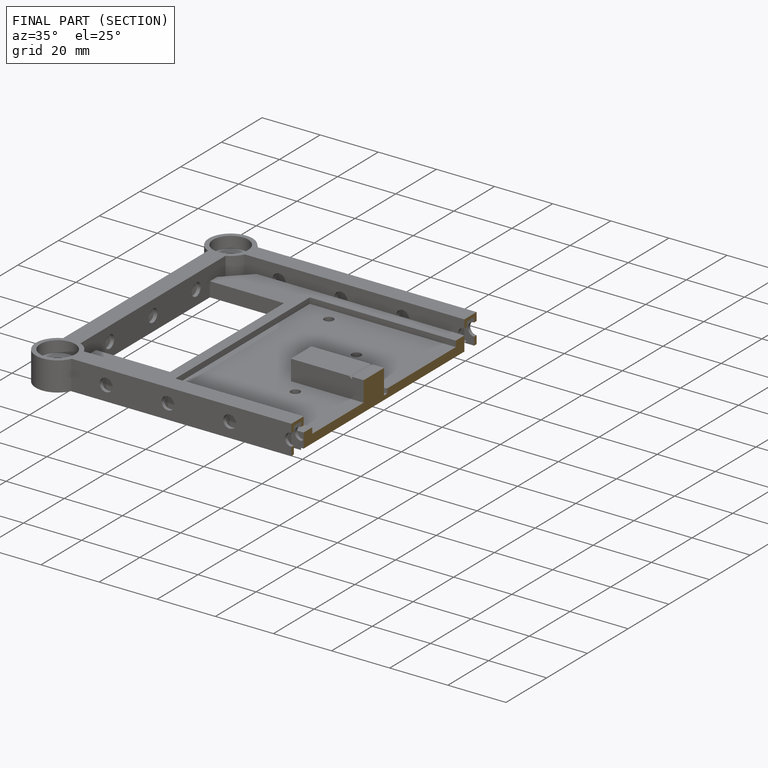
[diagram: finished part — half-section view (interior)]
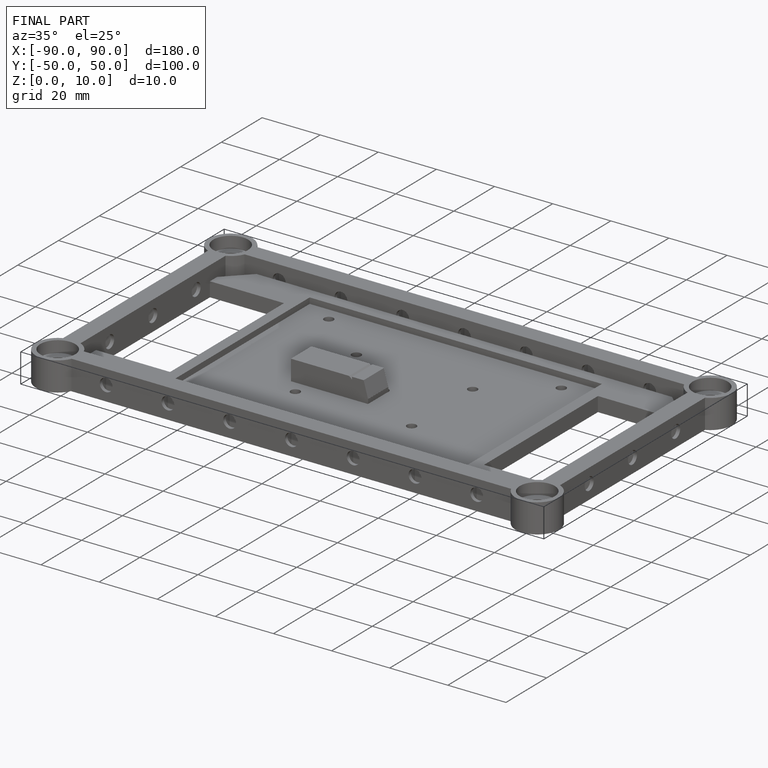
[diagram: finished part — iso view with bounding-box wireframe]
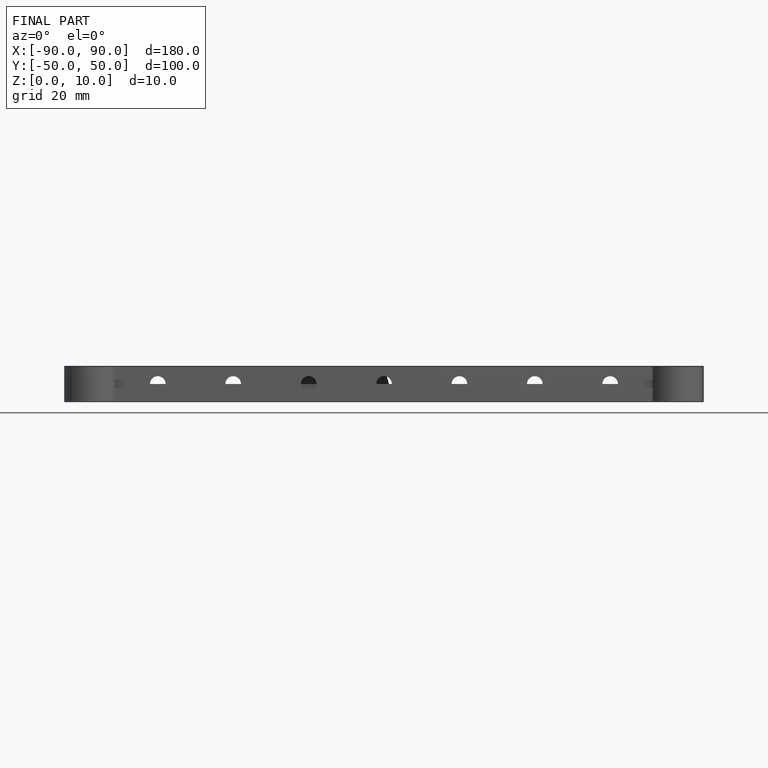
[diagram: finished part — front view with bounding-box wireframe]
